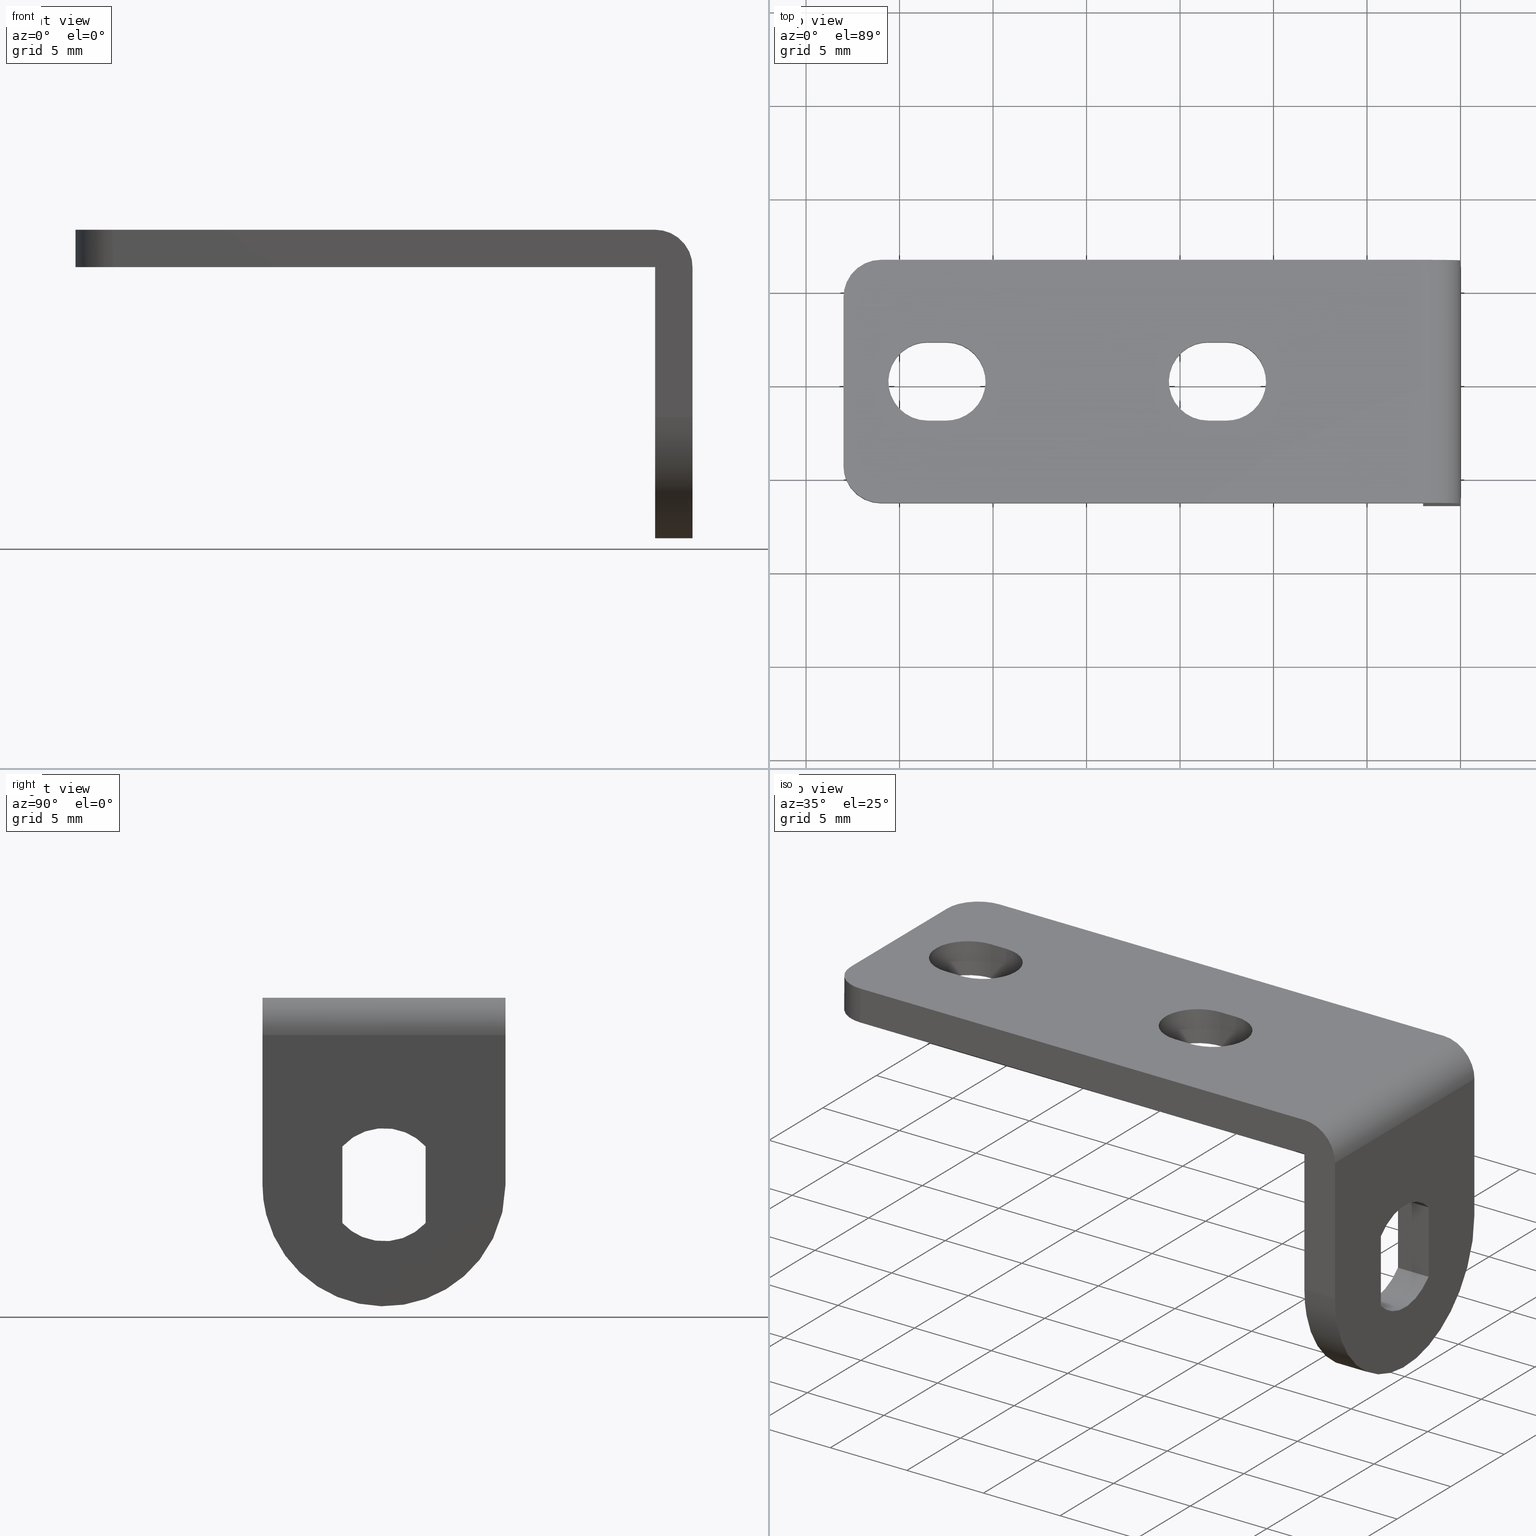
[diagram: canonical four-view strip — front | top / right | iso, engineering-drawing reading convention]
A machine part, canonical four-view strip (front | top / right | iso — engineering-drawing reading convention). The complete STEP part file that produces these views, byte-faithful:
ISO-10303-21;
HEADER;
/****************************************************************
 * Generated by software with PDE/Lib inside                    *
 * PDElib Version v5.1, created Sun 05/01/2005                  *
 * International Technegroup Inc. (www.iti-oh.com)              *
 ****************************************************************/
FILE_DESCRIPTION((''),'2;1');
FILE_NAME('','2009-10-15T11:15:21',(''),(''),'','CADfix','');
FILE_SCHEMA(('AUTOMOTIVE_DESIGN { 1 0 10303 214 1 1 1 1 }'));
ENDSEC;
DATA;
#5=CARTESIAN_POINT('',(-33.0,4.949549982556253,10.099899996123609));
#6=CARTESIAN_POINT('',(-33.0,-4.949550223955065,10.099899996123609));
#7=CARTESIAN_POINT('',(-33.0,4.949549982556253,7.900099950232209));
#8=CARTESIAN_POINT('',(-33.0,-4.949550223955065,7.900099950232209));
#9=B_SPLINE_SURFACE_WITH_KNOTS('',1,1,((#5,#7),(#6,#8)),.UNSPECIFIED.,.F.,.F.,.U.,(2,2),(2,2),(0.0,9.899100206511317),(0.0,2.199800045891402),.UNSPECIFIED.);
#10=CARTESIAN_POINT('',(-33.0,-4.500000000000000,8.0));
#11=VERTEX_POINT('',#10);
#12=CARTESIAN_POINT('',(-33.0,4.500000000000000,8.0));
#13=VERTEX_POINT('',#12);
#14=CARTESIAN_POINT('',(-33.0,-4.500000000000000,8.0));
#15=CARTESIAN_POINT('',(-33.0,4.500000000000000,8.0));
#16=QUASI_UNIFORM_CURVE('',1,(#14,#15),.UNSPECIFIED.,.F.,.U.);
#17=EDGE_CURVE('',#11,#13,#16,.T.);
#18=ORIENTED_EDGE('',*,*,#17,.F.);
#19=CARTESIAN_POINT('',(-33.0,-4.500000000000000,10.0));
#20=VERTEX_POINT('',#19);
#21=CARTESIAN_POINT('',(-33.0,-4.500000000000000,8.0));
#22=CARTESIAN_POINT('',(-33.0,-4.500000000000000,10.0));
#23=QUASI_UNIFORM_CURVE('',1,(#21,#22),.UNSPECIFIED.,.F.,.U.);
#24=EDGE_CURVE('',#11,#20,#23,.T.);
#25=ORIENTED_EDGE('',*,*,#24,.T.);
#26=CARTESIAN_POINT('',(-33.0,4.500000000000000,10.0));
#27=VERTEX_POINT('',#26);
#28=CARTESIAN_POINT('',(-33.0,-4.500000000000000,10.0));
#29=CARTESIAN_POINT('',(-33.0,4.500000000000000,10.0));
#30=QUASI_UNIFORM_CURVE('',1,(#28,#29),.UNSPECIFIED.,.F.,.U.);
#31=EDGE_CURVE('',#20,#27,#30,.T.);
#32=ORIENTED_EDGE('',*,*,#31,.T.);
#33=CARTESIAN_POINT('',(-33.0,4.500000000000000,10.0));
#34=CARTESIAN_POINT('',(-33.0,4.500000000000000,8.0));
#35=QUASI_UNIFORM_CURVE('',1,(#33,#34),.UNSPECIFIED.,.F.,.U.);
#36=EDGE_CURVE('',#27,#13,#35,.T.);
#37=ORIENTED_EDGE('',*,*,#36,.T.);
#38=EDGE_LOOP('',(#18,#25,#32,#37));
#39=FACE_OUTER_BOUND('',#38,.T.);
#40=ADVANCED_FACE('',(#39),#9,.F.);
#41=CARTESIAN_POINT('',(-2.087238774730669,6.825000000000002,9.998096443163716));
#42=CARTESIAN_POINT('',(-2.087238774730669,-6.833125000000001,9.998096443163719));
#43=CARTESIAN_POINT('',(0.152120528918077,6.825000000000000,10.095868981871966));
#44=CARTESIAN_POINT('',(0.152120528918077,-6.833125000000001,10.095868981871970));
#45=CARTESIAN_POINT('',(-0.004914173536164,6.824999999999999,7.859883815912952));
#46=CARTESIAN_POINT('',(-0.004914173536164,-6.833125000000003,7.859883815912955));
#54=(BOUNDED_SURFACE()B_SPLINE_SURFACE(1,2,((#41,#43,#45),(#42,#44,#46)),.UNSPECIFIED.,.F.,.F.,.U.)B_SPLINE_SURFACE_WITH_KNOTS((2,2),(3,3),(0.0,13.658125000000000),(0.0,3.583485079683971),.UNSPECIFIED.)GEOMETRIC_REPRESENTATION_ITEM()RATIONAL_B_SPLINE_SURFACE(((1.0,0.664513898535122,0.996233561259061),(1.0,0.664513898535122,0.996233561259061)))REPRESENTATION_ITEM('')SURFACE());
#55=CARTESIAN_POINT('',(0.0,-6.500000000000000,8.0));
#56=VERTEX_POINT('',#55);
#57=CARTESIAN_POINT('',(-2.0,-6.500000000000000,10.0));
#58=VERTEX_POINT('',#57);
#59=CARTESIAN_POINT('',(0.0,-6.500000000000000,8.0));
#60=CARTESIAN_POINT('',(0.0,-6.500000000000001,10.000000000000002));
#61=CARTESIAN_POINT('',(-2.0,-6.500000000000000,10.0));
#69=(BOUNDED_CURVE()B_SPLINE_CURVE(2,(#59,#60,#61),.UNSPECIFIED.,.F.,.U.)CURVE()GEOMETRIC_REPRESENTATION_ITEM()QUASI_UNIFORM_CURVE()RATIONAL_B_SPLINE_CURVE((1.0,0.707106781186548,1.0))REPRESENTATION_ITEM(''));
#70=EDGE_CURVE('',#56,#58,#69,.T.);
#71=ORIENTED_EDGE('',*,*,#70,.F.);
#72=CARTESIAN_POINT('',(0.0,6.500000000000000,8.0));
#73=VERTEX_POINT('',#72);
#74=CARTESIAN_POINT('',(0.0,6.500000000000000,8.0));
#75=CARTESIAN_POINT('',(0.0,-6.500000000000000,8.0));
#76=QUASI_UNIFORM_CURVE('',1,(#74,#75),.UNSPECIFIED.,.F.,.U.);
#77=EDGE_CURVE('',#73,#56,#76,.T.);
#78=ORIENTED_EDGE('',*,*,#77,.F.);
#79=CARTESIAN_POINT('',(-2.0,6.500000000000000,10.0));
#80=VERTEX_POINT('',#79);
#81=CARTESIAN_POINT('',(-2.0,6.500000000000000,10.0));
#82=CARTESIAN_POINT('',(0.0,6.500000000000001,10.000000000000002));
#83=CARTESIAN_POINT('',(0.0,6.500000000000000,8.0));
#91=(BOUNDED_CURVE()B_SPLINE_CURVE(2,(#81,#82,#83),.UNSPECIFIED.,.F.,.U.)CURVE()GEOMETRIC_REPRESENTATION_ITEM()QUASI_UNIFORM_CURVE()RATIONAL_B_SPLINE_CURVE((1.0,0.707106781186548,1.0))REPRESENTATION_ITEM(''));
#92=EDGE_CURVE('',#80,#73,#91,.T.);
#93=ORIENTED_EDGE('',*,*,#92,.F.);
#94=CARTESIAN_POINT('',(-2.0,-6.500000000000000,10.0));
#95=CARTESIAN_POINT('',(-2.0,6.500000000000000,10.0));
#96=QUASI_UNIFORM_CURVE('',1,(#94,#95),.UNSPECIFIED.,.F.,.U.);
#97=EDGE_CURVE('',#58,#80,#96,.T.);
#98=ORIENTED_EDGE('',*,*,#97,.F.);
#99=EDGE_LOOP('',(#71,#78,#93,#98));
#100=FACE_OUTER_BOUND('',#99,.T.);
#101=ADVANCED_FACE('',(#100),#54,.T.);
#102=CARTESIAN_POINT('',(-30.947646103384251,6.499314649951113,10.050000000000001));
#103=CARTESIAN_POINT('',(-30.947646103384251,6.499314649951113,7.948750000000000));
#104=CARTESIAN_POINT('',(-33.129515177188232,6.556448902391985,10.050000000000002));
#105=CARTESIAN_POINT('',(-33.129515177188232,6.556448902391985,7.948750000000000));
#106=CARTESIAN_POINT('',(-32.996269596843732,4.377902920930293,10.050000000000001));
#107=CARTESIAN_POINT('',(-32.996269596843732,4.377902920930293,7.948750000000000));
#115=(BOUNDED_SURFACE()B_SPLINE_SURFACE(1,2,((#102,#104,#106),(#103,#105,#107)),.UNSPECIFIED.,.F.,.F.,.U.)B_SPLINE_SURFACE_WITH_KNOTS((2,2),(3,3),(0.0,2.101250000000003),(0.0,3.520084247134655),.UNSPECIFIED.)GEOMETRIC_REPRESENTATION_ITEM()RATIONAL_B_SPLINE_SURFACE(((1.0,0.675590207615660,1.0),(1.0,0.675590207615660,1.0)))REPRESENTATION_ITEM('')SURFACE());
#116=CARTESIAN_POINT('',(-31.0,6.500000000000000,10.0));
#117=VERTEX_POINT('',#116);
#118=CARTESIAN_POINT('',(-31.0,6.500000000000000,10.0));
#119=CARTESIAN_POINT('',(-33.0,6.500000000000001,10.000000000000002));
#120=CARTESIAN_POINT('',(-33.0,4.500000000000000,10.0));
#128=(BOUNDED_CURVE()B_SPLINE_CURVE(2,(#118,#119,#120),.UNSPECIFIED.,.F.,.U.)CURVE()GEOMETRIC_REPRESENTATION_ITEM()QUASI_UNIFORM_CURVE()RATIONAL_B_SPLINE_CURVE((1.0,0.707106781186548,1.0))REPRESENTATION_ITEM(''));
#129=EDGE_CURVE('',#117,#27,#128,.T.);
#130=ORIENTED_EDGE('',*,*,#129,.F.);
#131=CARTESIAN_POINT('',(-31.0,6.500000000000000,8.0));
#132=VERTEX_POINT('',#131);
#133=CARTESIAN_POINT('',(-31.0,6.500000000000000,8.0));
#134=CARTESIAN_POINT('',(-31.0,6.500000000000000,10.0));
#135=QUASI_UNIFORM_CURVE('',1,(#133,#134),.UNSPECIFIED.,.F.,.U.);
#136=EDGE_CURVE('',#132,#117,#135,.T.);
#137=ORIENTED_EDGE('',*,*,#136,.F.);
#138=CARTESIAN_POINT('',(-33.0,4.500000000000000,8.0));
#139=CARTESIAN_POINT('',(-33.0,6.500000000000001,8.0));
#140=CARTESIAN_POINT('',(-31.0,6.500000000000000,8.0));
#148=(BOUNDED_CURVE()B_SPLINE_CURVE(2,(#138,#139,#140),.UNSPECIFIED.,.F.,.U.)CURVE()GEOMETRIC_REPRESENTATION_ITEM()QUASI_UNIFORM_CURVE()RATIONAL_B_SPLINE_CURVE((1.0,0.707106781186548,1.0))REPRESENTATION_ITEM(''));
#149=EDGE_CURVE('',#13,#132,#148,.T.);
#150=ORIENTED_EDGE('',*,*,#149,.F.);
#151=ORIENTED_EDGE('',*,*,#36,.F.);
#152=EDGE_LOOP('',(#130,#137,#150,#151));
#153=FACE_OUTER_BOUND('',#152,.T.);
#154=ADVANCED_FACE('',(#153),#115,.T.);
#155=CARTESIAN_POINT('',(-30.947646103384251,-6.499314649951113,7.950000000000000));
#156=CARTESIAN_POINT('',(-30.947646103384251,-6.499314649951113,10.051250000000000));
#157=CARTESIAN_POINT('',(-33.129515177188232,-6.556448902391985,7.950000000000000));
#158=CARTESIAN_POINT('',(-33.129515177188232,-6.556448902391985,10.051250000000001));
#159=CARTESIAN_POINT('',(-32.996269596843732,-4.377902920930293,7.950000000000000));
#160=CARTESIAN_POINT('',(-32.996269596843732,-4.377902920930293,10.051250000000000));
#168=(BOUNDED_SURFACE()B_SPLINE_SURFACE(1,2,((#155,#157,#159),(#156,#158,#160)),.UNSPECIFIED.,.F.,.F.,.U.)B_SPLINE_SURFACE_WITH_KNOTS((2,2),(3,3),(0.0,2.101250000000002),(0.0,3.520084247134655),.UNSPECIFIED.)GEOMETRIC_REPRESENTATION_ITEM()RATIONAL_B_SPLINE_SURFACE(((1.0,0.675590207615660,1.0),(1.0,0.675590207615660,1.0)))REPRESENTATION_ITEM('')SURFACE());
#169=CARTESIAN_POINT('',(-31.0,-6.500000000000000,8.0));
#170=VERTEX_POINT('',#169);
#171=CARTESIAN_POINT('',(-31.0,-6.500000000000000,8.0));
#172=CARTESIAN_POINT('',(-33.0,-6.500000000000001,8.0));
#173=CARTESIAN_POINT('',(-33.0,-4.500000000000000,8.0));
#181=(BOUNDED_CURVE()B_SPLINE_CURVE(2,(#171,#172,#173),.UNSPECIFIED.,.F.,.U.)CURVE()GEOMETRIC_REPRESENTATION_ITEM()QUASI_UNIFORM_CURVE()RATIONAL_B_SPLINE_CURVE((1.0,0.707106781186548,1.0))REPRESENTATION_ITEM(''));
#182=EDGE_CURVE('',#170,#11,#181,.T.);
#183=ORIENTED_EDGE('',*,*,#182,.F.);
#184=CARTESIAN_POINT('',(-31.0,-6.500000000000000,10.0));
#185=VERTEX_POINT('',#184);
#186=CARTESIAN_POINT('',(-31.0,-6.500000000000000,10.0));
#187=CARTESIAN_POINT('',(-31.0,-6.500000000000000,8.0));
#188=QUASI_UNIFORM_CURVE('',1,(#186,#187),.UNSPECIFIED.,.F.,.U.);
#189=EDGE_CURVE('',#185,#170,#188,.T.);
#190=ORIENTED_EDGE('',*,*,#189,.F.);
#191=CARTESIAN_POINT('',(-33.0,-4.500000000000000,10.0));
#192=CARTESIAN_POINT('',(-33.0,-6.500000000000001,10.000000000000002));
#193=CARTESIAN_POINT('',(-31.0,-6.500000000000000,10.0));
#201=(BOUNDED_CURVE()B_SPLINE_CURVE(2,(#191,#192,#193),.UNSPECIFIED.,.F.,.U.)CURVE()GEOMETRIC_REPRESENTATION_ITEM()QUASI_UNIFORM_CURVE()RATIONAL_B_SPLINE_CURVE((1.0,0.707106781186548,1.0))REPRESENTATION_ITEM(''));
#202=EDGE_CURVE('',#20,#185,#201,.T.);
#203=ORIENTED_EDGE('',*,*,#202,.F.);
#204=ORIENTED_EDGE('',*,*,#24,.F.);
#205=EDGE_LOOP('',(#183,#190,#203,#204));
#206=FACE_OUTER_BOUND('',#205,.T.);
#207=ADVANCED_FACE('',(#206),#168,.T.);
#208=CARTESIAN_POINT('',(-2.099899996123611,-2.225000000000000,2.254124221551445));
#209=CARTESIAN_POINT('',(-2.099899996123611,-2.225000000000000,-2.254124331489389));
#210=CARTESIAN_POINT('',(0.099900049767792,-2.225000000000000,2.254124221551445));
#211=CARTESIAN_POINT('',(0.099900049767792,-2.225000000000000,-2.254124331489389));
#212=B_SPLINE_SURFACE_WITH_KNOTS('',1,1,((#208,#210),(#209,#211)),.UNSPECIFIED.,.F.,.F.,.U.,(2,2),(2,2),(0.0,4.508248553040835),(0.0,2.199800045891403),.UNSPECIFIED.);
#213=CARTESIAN_POINT('',(-2.0,-2.225000000000000,-2.049390153191900));
#214=VERTEX_POINT('',#213);
#215=CARTESIAN_POINT('',(-2.0,-2.225000000000000,2.049390153191810));
#216=VERTEX_POINT('',#215);
#217=CARTESIAN_POINT('',(-2.0,-2.225000000000000,-2.049390153191900));
#218=CARTESIAN_POINT('',(-2.0,-2.225000000000000,2.049390153191810));
#219=QUASI_UNIFORM_CURVE('',1,(#217,#218),.UNSPECIFIED.,.F.,.U.);
#220=EDGE_CURVE('',#214,#216,#219,.T.);
#221=ORIENTED_EDGE('',*,*,#220,.T.);
#222=CARTESIAN_POINT('',(0.0,-2.225000000000000,2.049390153191810));
#223=VERTEX_POINT('',#222);
#224=CARTESIAN_POINT('',(0.0,-2.225000000000000,2.049390153191810));
#225=CARTESIAN_POINT('',(-2.0,-2.225000000000000,2.049390153191810));
#226=QUASI_UNIFORM_CURVE('',1,(#224,#225),.UNSPECIFIED.,.F.,.U.);
#227=EDGE_CURVE('',#223,#216,#226,.T.);
#228=ORIENTED_EDGE('',*,*,#227,.F.);
#229=CARTESIAN_POINT('',(0.0,-2.225000000000000,-2.049390153191900));
#230=VERTEX_POINT('',#229);
#231=CARTESIAN_POINT('',(0.0,-2.225000000000000,-2.049390153191900));
#232=CARTESIAN_POINT('',(0.0,-2.225000000000000,2.049390153191810));
#233=QUASI_UNIFORM_CURVE('',1,(#231,#232),.UNSPECIFIED.,.F.,.U.);
#234=EDGE_CURVE('',#230,#223,#233,.T.);
#235=ORIENTED_EDGE('',*,*,#234,.F.);
#236=CARTESIAN_POINT('',(0.0,-2.225000000000000,-2.049390153191900));
#237=CARTESIAN_POINT('',(-2.0,-2.225000000000000,-2.049390153191900));
#238=QUASI_UNIFORM_CURVE('',1,(#236,#237),.UNSPECIFIED.,.F.,.U.);
#239=EDGE_CURVE('',#230,#214,#238,.T.);
#240=ORIENTED_EDGE('',*,*,#239,.T.);
#241=EDGE_LOOP('',(#221,#228,#235,#240));
#242=FACE_OUTER_BOUND('',#241,.T.);
#243=ADVANCED_FACE('',(#242),#212,.F.);
#244=CARTESIAN_POINT('',(0.050000000000000,-2.288093528145802,-1.978699827274792));
#245=CARTESIAN_POINT('',(-2.051250000000000,-2.288093528145802,-1.978699827274792));
#246=CARTESIAN_POINT('',(0.050000000000000,0.098907118232147,-4.738936956409964));
#247=CARTESIAN_POINT('',(-2.051250000000000,0.098907118232147,-4.738936956409964));
#248=CARTESIAN_POINT('',(0.050000000000000,2.368660548059229,-1.881507961202328));
#249=CARTESIAN_POINT('',(-2.051250000000000,2.368660548059229,-1.881507961202328));
#257=(BOUNDED_SURFACE()B_SPLINE_SURFACE(1,2,((#244,#246,#248),(#245,#247,#249)),.UNSPECIFIED.,.F.,.F.,.U.)B_SPLINE_SURFACE_WITH_KNOTS((2,2),(3,3),(0.0,2.101250000000000),(0.0,5.686478798136462),.UNSPECIFIED.)GEOMETRIC_REPRESENTATION_ITEM()RATIONAL_B_SPLINE_SURFACE(((1.0,0.637368668954222,0.997428254381767),(1.0,0.637368668954222,0.997428254381767)))REPRESENTATION_ITEM('')SURFACE());
#258=CARTESIAN_POINT('',(-2.0,2.225000000000000,-2.049390153191895));
#259=VERTEX_POINT('',#258);
#260=CARTESIAN_POINT('',(-2.0,2.225000000000000,-2.049390153191895));
#261=CARTESIAN_POINT('',(-2.0,2.101505619495727,-2.183479612575628));
#262=CARTESIAN_POINT('',(-2.0,1.801131388566470,-2.455601944057032));
#263=CARTESIAN_POINT('',(-2.0,1.305557498763463,-2.749922535725177));
#264=CARTESIAN_POINT('',(-1.999999999999999,0.825473383847988,-2.920894479872005));
#265=CARTESIAN_POINT('',(-2.000000000000007,0.390864704031906,-3.009061683374335));
#266=CARTESIAN_POINT('',(-1.999999999999987,-0.117420446036299,-3.041971172032383));
#267=CARTESIAN_POINT('',(-2.000000000000007,-0.676414282255761,-2.969390914024591));
#268=CARTESIAN_POINT('',(-2.000000000000003,-1.195729694786962,-2.791864609872553));
#269=CARTESIAN_POINT('',(-1.999999999999996,-1.715635769934116,-2.518412250746568));
#270=CARTESIAN_POINT('',(-2.000000000000001,-2.039810292822370,-2.250592039802251));
#271=CARTESIAN_POINT('',(-2.0,-2.225000000000000,-2.049390153191900));
#272=B_SPLINE_CURVE_WITH_KNOTS('',3,(#260,#261,#262,#263,#264,#265,#266,#267,#268,#269,#270,#271),.UNSPECIFIED.,.F.,.U.,(4,1,1,1,1,1,1,1,1,4),(8.069619E-009,0.546886146901112,1.210964638110033,1.718794840483118,2.070368489043807,2.539117460991305,3.242255531745626,3.750085249541511,4.179782768870926,5.000113255541421),.UNSPECIFIED.);
#273=EDGE_CURVE('',#259,#214,#272,.T.);
#274=ORIENTED_EDGE('',*,*,#273,.T.);
#275=ORIENTED_EDGE('',*,*,#239,.F.);
#276=CARTESIAN_POINT('',(0.0,2.225000000000000,-2.049390153191895));
#277=VERTEX_POINT('',#276);
#278=CARTESIAN_POINT('',(0.0,2.225000000000000,-2.049390153191895));
#279=CARTESIAN_POINT('',(0.0,2.066242211879372,-2.221812543929323));
#280=CARTESIAN_POINT('',(0.0,1.698452012505978,-2.538034670305128));
#281=CARTESIAN_POINT('',(0.0,1.078955045574241,-2.853789182332903));
#282=CARTESIAN_POINT('',(0.0,0.482099903002205,-3.003180467352935));
#283=CARTESIAN_POINT('',(0.0,-0.117421838410509,-3.041961972614474));
#284=CARTESIAN_POINT('',(0.0,-0.676413852054989,-2.969393750708280));
#285=CARTESIAN_POINT('',(0.0,-1.195729768616037,-2.791864122946298));
#286=CARTESIAN_POINT('',(0.0,-1.715635770027413,-2.518412250542273));
#287=CARTESIAN_POINT('',(0.0,-2.039810292791877,-2.250592039869015));
#288=CARTESIAN_POINT('',(0.0,-2.225000000000000,-2.049390153191900));
#289=B_SPLINE_CURVE_WITH_KNOTS('',3,(#278,#279,#280,#281,#282,#283,#284,#285,#286,#287,#288),.UNSPECIFIED.,.F.,.U.,(4,1,1,1,1,1,1,1,4),(8.069619E-009,0.703134735984326,1.445345635704363,2.070368489043807,2.539117460991305,3.242255531745626,3.750085249541511,4.179782768870926,5.000113255541421),.UNSPECIFIED.);
#290=EDGE_CURVE('',#277,#230,#289,.T.);
#291=ORIENTED_EDGE('',*,*,#290,.F.);
#292=CARTESIAN_POINT('',(0.0,2.225000000000000,-2.049390153191895));
#293=CARTESIAN_POINT('',(-2.0,2.225000000000000,-2.049390153191895));
#294=QUASI_UNIFORM_CURVE('',1,(#292,#293),.UNSPECIFIED.,.F.,.U.);
#295=EDGE_CURVE('',#277,#259,#294,.T.);
#296=ORIENTED_EDGE('',*,*,#295,.T.);
#297=EDGE_LOOP('',(#274,#275,#291,#296));
#298=FACE_OUTER_BOUND('',#297,.T.);
#299=ADVANCED_FACE('',(#298),#257,.F.);
#300=CARTESIAN_POINT('',(-2.099899996123612,2.225000000000000,-2.254124221551530));
#301=CARTESIAN_POINT('',(-2.099899996123612,2.225000000000000,2.254124331489300));
#302=CARTESIAN_POINT('',(0.099900049767792,2.225000000000000,-2.254124221551530));
#303=CARTESIAN_POINT('',(0.099900049767792,2.225000000000000,2.254124331489300));
#304=B_SPLINE_SURFACE_WITH_KNOTS('',1,1,((#300,#302),(#301,#303)),.UNSPECIFIED.,.F.,.F.,.U.,(2,2),(2,2),(0.0,4.508248553040829),(0.0,2.199800045891404),.UNSPECIFIED.);
#305=CARTESIAN_POINT('',(-2.0,2.225000000000000,2.049390153191810));
#306=VERTEX_POINT('',#305);
#307=CARTESIAN_POINT('',(-2.0,2.225000000000000,2.049390153191810));
#308=CARTESIAN_POINT('',(-2.0,2.225000000000000,-2.049390153191895));
#309=QUASI_UNIFORM_CURVE('',1,(#307,#308),.UNSPECIFIED.,.F.,.U.);
#310=EDGE_CURVE('',#306,#259,#309,.T.);
#311=ORIENTED_EDGE('',*,*,#310,.T.);
#312=ORIENTED_EDGE('',*,*,#295,.F.);
#313=CARTESIAN_POINT('',(0.0,2.225000000000000,2.049390153191810));
#314=VERTEX_POINT('',#313);
#315=CARTESIAN_POINT('',(0.0,2.225000000000000,2.049390153191810));
#316=CARTESIAN_POINT('',(0.0,2.225000000000000,-2.049390153191895));
#317=QUASI_UNIFORM_CURVE('',1,(#315,#316),.UNSPECIFIED.,.F.,.U.);
#318=EDGE_CURVE('',#314,#277,#317,.T.);
#319=ORIENTED_EDGE('',*,*,#318,.F.);
#320=CARTESIAN_POINT('',(0.0,2.225000000000000,2.049390153191810));
#321=CARTESIAN_POINT('',(-2.0,2.225000000000000,2.049390153191810));
#322=QUASI_UNIFORM_CURVE('',1,(#320,#321),.UNSPECIFIED.,.F.,.U.);
#323=EDGE_CURVE('',#314,#306,#322,.T.);
#324=ORIENTED_EDGE('',*,*,#323,.T.);
#325=EDGE_LOOP('',(#311,#312,#319,#324));
#326=FACE_OUTER_BOUND('',#325,.T.);
#327=ADVANCED_FACE('',(#326),#304,.F.);
#328=CARTESIAN_POINT('',(0.050000000000000,2.288093528145761,1.978699827274839));
#329=CARTESIAN_POINT('',(-2.051250000000000,2.288093528145761,1.978699827274839));
#330=CARTESIAN_POINT('',(0.050000000000000,-0.098907118232245,4.738936956409962));
#331=CARTESIAN_POINT('',(-2.051250000000000,-0.098907118232245,4.738936956409962));
#332=CARTESIAN_POINT('',(0.050000000000000,-2.368660548059268,1.881507961202279));
#333=CARTESIAN_POINT('',(-2.051250000000000,-2.368660548059268,1.881507961202279));
#341=(BOUNDED_SURFACE()B_SPLINE_SURFACE(1,2,((#328,#330,#332),(#329,#331,#333)),.UNSPECIFIED.,.F.,.F.,.U.)B_SPLINE_SURFACE_WITH_KNOTS((2,2),(3,3),(0.0,2.101250000000000),(0.0,5.686478798136462),.UNSPECIFIED.)GEOMETRIC_REPRESENTATION_ITEM()RATIONAL_B_SPLINE_SURFACE(((1.0,0.637368668954222,0.997428254381767),(1.0,0.637368668954222,0.997428254381767)))REPRESENTATION_ITEM('')SURFACE());
#342=CARTESIAN_POINT('',(-2.0,-2.225000000000000,2.049390153191810));
#343=CARTESIAN_POINT('',(-1.999999999999998,-2.031006195260670,2.260190321691498));
#344=CARTESIAN_POINT('',(-2.000000000000007,-1.725189268082799,2.509500036538843));
#345=CARTESIAN_POINT('',(-1.999999999999994,-1.242172448946228,2.767541170521441));
#346=CARTESIAN_POINT('',(-2.000000000000012,-0.863487723868469,2.910773057280674));
#347=CARTESIAN_POINT('',(-1.999999999999989,-0.391415096193735,3.012908597625646));
#348=CARTESIAN_POINT('',(-1.999999999999996,0.091684946193217,3.037890837009070));
#349=CARTESIAN_POINT('',(-2.000000000000005,0.649490684755462,2.972781117727226));
#350=CARTESIAN_POINT('',(-1.999999999999998,1.149529323285999,2.816209647081225));
#351=CARTESIAN_POINT('',(-2.000000000000001,1.715630193629047,2.518396352325647));
#352=CARTESIAN_POINT('',(-1.999999999999999,2.039812081739565,2.250597189945147));
#353=CARTESIAN_POINT('',(-2.0,2.225000000000000,2.049390153191810));
#354=B_SPLINE_CURVE_WITH_KNOTS('',3,(#342,#343,#344,#345,#346,#347,#348,#349,#350,#351,#352,#353),.UNSPECIFIED.,.F.,.U.,(4,1,1,1,1,1,1,1,1,4),(8.069359E-009,0.859390450907211,1.171900766265275,1.640667301761298,2.070368489043887,2.617239591922656,3.086007354720771,3.750085249541642,4.179782768871053,5.000113255541534),.UNSPECIFIED.);
#355=EDGE_CURVE('',#216,#306,#354,.T.);
#356=ORIENTED_EDGE('',*,*,#355,.T.);
#357=ORIENTED_EDGE('',*,*,#323,.F.);
#358=CARTESIAN_POINT('',(0.0,-2.225000000000000,2.049390153191810));
#359=CARTESIAN_POINT('',(0.0,-2.031003567918119,2.260181486694275));
#360=CARTESIAN_POINT('',(0.0,-1.653834101651891,2.567691548098811));
#361=CARTESIAN_POINT('',(0.0,-1.087167711786510,2.838267559281084));
#362=CARTESIAN_POINT('',(0.0,-0.647764746313776,2.963475253012602));
#363=CARTESIAN_POINT('',(0.0,-0.260783447094791,3.021370158692325));
#364=CARTESIAN_POINT('',(0.0,0.143574439275667,3.031818423133955));
#365=CARTESIAN_POINT('',(0.0,0.649490992202454,2.972787639983153));
#366=CARTESIAN_POINT('',(0.0,1.149529203839073,2.816207637508748));
#367=CARTESIAN_POINT('',(0.0,1.715630253416153,2.518397358575006));
#368=CARTESIAN_POINT('',(0.0,2.039812062219553,2.250596860866705));
#369=CARTESIAN_POINT('',(0.0,2.225000000000000,2.049390153191810));
#370=B_SPLINE_CURVE_WITH_KNOTS('',3,(#358,#359,#360,#361,#362,#363,#364,#365,#366,#367,#368,#369),.UNSPECIFIED.,.F.,.U.,(4,1,1,1,1,1,1,1,1,4),(8.069359E-009,0.859390450907211,1.445345635704413,1.875044543677592,2.226624659416981,2.617239591922656,3.086007354720771,3.750085249541642,4.179782768871053,5.000113255541534),.UNSPECIFIED.);
#371=EDGE_CURVE('',#223,#314,#370,.T.);
#372=ORIENTED_EDGE('',*,*,#371,.F.);
#373=ORIENTED_EDGE('',*,*,#227,.T.);
#374=EDGE_LOOP('',(#356,#357,#372,#373));
#375=FACE_OUTER_BOUND('',#374,.T.);
#376=ADVANCED_FACE('',(#375),#341,.F.);
#377=CARTESIAN_POINT('',(-28.549956998061798,2.100000000000000,7.900100003876166));
#378=CARTESIAN_POINT('',(-28.549956998061798,2.100000000000000,10.099900049767800));
#379=CARTESIAN_POINT('',(-27.450056975116208,2.100000000000000,7.900100003876166));
#380=CARTESIAN_POINT('',(-27.450056975116208,2.100000000000000,10.099900049767800));
#381=B_SPLINE_SURFACE_WITH_KNOTS('',1,1,((#377,#379),(#378,#380)),.UNSPECIFIED.,.F.,.F.,.U.,(2,2),(2,2),(0.0,2.199800045891636),(0.041708334948495,0.958291687403247),.UNSPECIFIED.);
#382=CARTESIAN_POINT('',(-28.500007000000000,2.100000000000000,8.0));
#383=VERTEX_POINT('',#382);
#384=CARTESIAN_POINT('',(-27.500007000000100,2.100000000000000,7.999999999999789));
#385=VERTEX_POINT('',#384);
#386=CARTESIAN_POINT('',(-28.500007000000000,2.100000000000000,8.0));
#387=CARTESIAN_POINT('',(-27.500007000000100,2.100000000000000,7.999999999999789));
#388=QUASI_UNIFORM_CURVE('',1,(#386,#387),.UNSPECIFIED.,.F.,.U.);
#389=EDGE_CURVE('',#383,#385,#388,.T.);
#390=ORIENTED_EDGE('',*,*,#389,.T.);
#391=CARTESIAN_POINT('',(-27.500007000000100,2.100000000000000,10.0));
#392=VERTEX_POINT('',#391);
#393=CARTESIAN_POINT('',(-27.500007000000100,2.100000000000000,10.0));
#394=CARTESIAN_POINT('',(-27.500007000000100,2.100000000000000,7.999999999999789));
#395=QUASI_UNIFORM_CURVE('',1,(#393,#394),.UNSPECIFIED.,.F.,.U.);
#396=EDGE_CURVE('',#392,#385,#395,.T.);
#397=ORIENTED_EDGE('',*,*,#396,.F.);
#398=CARTESIAN_POINT('',(-28.500006999999950,2.100000000000000,10.0));
#399=VERTEX_POINT('',#398);
#400=CARTESIAN_POINT('',(-28.500006999999950,2.100000000000000,10.0));
#401=CARTESIAN_POINT('',(-27.500007000000100,2.100000000000000,10.0));
#402=QUASI_UNIFORM_CURVE('',1,(#400,#401),.UNSPECIFIED.,.F.,.U.);
#403=EDGE_CURVE('',#399,#392,#402,.T.);
#404=ORIENTED_EDGE('',*,*,#403,.F.);
#405=CARTESIAN_POINT('',(-28.500006999999950,2.100000000000000,10.0));
#406=CARTESIAN_POINT('',(-28.500007000000000,2.100000000000000,8.0));
#407=QUASI_UNIFORM_CURVE('',1,(#405,#406),.UNSPECIFIED.,.F.,.U.);
#408=EDGE_CURVE('',#399,#383,#407,.T.);
#409=ORIENTED_EDGE('',*,*,#408,.T.);
#410=EDGE_LOOP('',(#390,#397,#404,#409));
#411=FACE_OUTER_BOUND('',#410,.T.);
#412=ADVANCED_FACE('',(#411),#381,.F.);
#413=CARTESIAN_POINT('',(-28.445035408553409,2.099280382448669,10.050000000000010));
#414=CARTESIAN_POINT('',(-28.445035408553409,2.099280382448669,7.948749999999782));
#415=CARTESIAN_POINT('',(-30.657215352970038,2.157208352970098,10.050000000000008));
#416=CARTESIAN_POINT('',(-30.657215352970038,2.157208352970098,7.948749999999782));
#417=CARTESIAN_POINT('',(-30.599287382448619,-0.054971591446527,10.050000000000010));
#418=CARTESIAN_POINT('',(-30.599287382448619,-0.054971591446527,7.948749999999782));
#419=CARTESIAN_POINT('',(-30.541359411927200,-2.267151535863157,10.050000000000008));
#420=CARTESIAN_POINT('',(-30.541359411927200,-2.267151535863157,7.948749999999782));
#421=CARTESIAN_POINT('',(-28.335242898971480,-2.093526400839572,10.050000000000010));
#422=CARTESIAN_POINT('',(-28.335242898971480,-2.093526400839572,7.948749999999782));
#430=(BOUNDED_SURFACE()B_SPLINE_SURFACE(1,2,((#413,#415,#417,#419,#421),(#414,#416,#418,#420,#422)),.UNSPECIFIED.,.F.,.F.,.U.)B_SPLINE_SURFACE_WITH_KNOTS((2,2),(3,2,3),(0.0,2.101250000000226),(0.0,3.608924810121425,7.217849620242850),.UNSPECIFIED.)GEOMETRIC_REPRESENTATION_ITEM()RATIONAL_B_SPLINE_SURFACE(((1.0,0.688354575693754,1.0,0.688354575693754,1.0),(1.0,0.688354575693754,1.0,0.688354575693754,1.0)))REPRESENTATION_ITEM('')SURFACE());
#431=CARTESIAN_POINT('',(-28.500006999999950,-2.100000000000000,7.999999999999789));
#432=VERTEX_POINT('',#431);
#433=CARTESIAN_POINT('',(-28.500006999999950,-2.100000000000000,7.999999999999789));
#434=CARTESIAN_POINT('',(-28.620263742091499,-2.100007918931733,7.999999999999775));
#435=CARTESIAN_POINT('',(-28.869376111454251,-2.078550591768240,7.999999999999811));
#436=CARTESIAN_POINT('',(-29.194173548334771,-1.990811402263315,7.999999999999775));
#437=CARTESIAN_POINT('',(-29.516775707918491,-1.847813542183672,7.999999999999781));
#438=CARTESIAN_POINT('',(-29.813439365354171,-1.654829935764011,7.999999999999814));
#439=CARTESIAN_POINT('',(-30.061876568357491,-1.415347120879163,7.999999999999734));
#440=CARTESIAN_POINT('',(-30.266687381253160,-1.149568120483187,7.999999999999900));
#441=CARTESIAN_POINT('',(-30.439145319053669,-0.840761659948083,7.999999999999632));
#442=CARTESIAN_POINT('',(-30.548155769346049,-0.503832279548689,7.999999999999732));
#443=CARTESIAN_POINT('',(-30.603357829824780,-0.146735760189044,8.000000000000032));
#444=CARTESIAN_POINT('',(-30.603381858297340,0.224419567413383,7.999999999999405));
#445=CARTESIAN_POINT('',(-30.504952264742631,0.689474839425530,7.999999999999988));
#446=CARTESIAN_POINT('',(-30.309889572380939,1.095457704482885,7.999999999999718));
#447=CARTESIAN_POINT('',(-30.057354942779689,1.423095964479487,7.999999999999806));
#448=CARTESIAN_POINT('',(-29.829945288035638,1.634347165467730,7.999999999999789));
#449=CARTESIAN_POINT('',(-29.568563719730669,1.816049503349913,7.999999999999783));
#450=CARTESIAN_POINT('',(-29.314417387359342,1.943969091109835,7.999999999999764));
#451=CARTESIAN_POINT('',(-28.946672070550001,2.065469475817759,7.999999999999887));
#452=CARTESIAN_POINT('',(-28.680408599153420,2.100051014326433,7.999999999999612));
#453=CARTESIAN_POINT('',(-28.500007000000000,2.100000000000000,8.0));
#454=B_SPLINE_CURVE_WITH_KNOTS('',3,(#433,#434,#435,#436,#437,#438,#439,#440,#441,#442,#443,#444,#445,#446,#447,#448,#449,#450,#451,#452,#453),.UNSPECIFIED.,.F.,.U.,(4,1,1,1,1,1,1,1,1,1,1,1,1,1,1,1,1,1,4),(0.000000080647867,0.360772037221383,0.747344724951675,1.005066560935696,1.417403730976727,1.803976484105833,2.035913619555326,2.422482571318741,2.860594379299326,3.092544508728885,3.504839456063156,3.968723134806426,4.509929714411546,4.844953937340516,5.205755089322520,5.437691127443609,5.798498560973187,6.056197956520133,6.597385968107757),.UNSPECIFIED.);
#455=EDGE_CURVE('',#432,#383,#454,.T.);
#456=ORIENTED_EDGE('',*,*,#455,.T.);
#457=ORIENTED_EDGE('',*,*,#408,.F.);
#458=CARTESIAN_POINT('',(-28.500006999999950,-2.100000000000000,10.0));
#459=VERTEX_POINT('',#458);
#460=CARTESIAN_POINT('',(-28.500006999999950,-2.100000000000000,10.0));
#461=CARTESIAN_POINT('',(-28.654627607421631,-2.100029020816533,9.999999999999993));
#462=CARTESIAN_POINT('',(-28.938090349906560,-2.068546868151748,9.999999999999996));
#463=CARTESIAN_POINT('',(-29.315649357867400,-1.946386878683386,10.0));
#464=CARTESIAN_POINT('',(-29.658781324349761,-1.765683052329597,9.999999999999950));
#465=CARTESIAN_POINT('',(-29.943388309856090,-1.540752977480805,10.000000000000060));
#466=CARTESIAN_POINT('',(-30.217274528149840,-1.231015800761199,10.000000000000030));
#467=CARTESIAN_POINT('',(-30.428531735355438,-0.873643969560297,9.999999999999895));
#468=CARTESIAN_POINT('',(-30.561446935140491,-0.462740080137985,9.999999999999886));
#469=CARTESIAN_POINT('',(-30.611045426117389,-0.060560229656254,10.000000000000270));
#470=CARTESIAN_POINT('',(-30.584098112299859,0.378838418758298,9.999999999999803));
#471=CARTESIAN_POINT('',(-30.460920588025921,0.794022961254657,10.000000000000069));
#472=CARTESIAN_POINT('',(-30.255441806568189,1.172777481763986,9.999999999999996));
#473=CARTESIAN_POINT('',(-30.050484029935880,1.428864583237080,9.999999999999996));
#474=CARTESIAN_POINT('',(-29.796913484080932,1.661533009999969,10.000000000000011));
#475=CARTESIAN_POINT('',(-29.525467199527760,1.845336899844080,9.999999999999975));
#476=CARTESIAN_POINT('',(-29.225927298976700,1.978098281060579,9.999999999999890));
#477=CARTESIAN_POINT('',(-28.886546680766021,2.074262420103647,10.000000000000410));
#478=CARTESIAN_POINT('',(-28.654629461814501,2.100028709502922,10.000000000000460));
#479=CARTESIAN_POINT('',(-28.500006999999950,2.100000000000000,10.0));
#480=B_SPLINE_CURVE_WITH_KNOTS('',3,(#460,#461,#462,#463,#464,#465,#466,#467,#468,#469,#470,#471,#472,#473,#474,#475,#476,#477,#478,#479),.UNSPECIFIED.,.F.,.U.,(4,1,1,1,1,1,1,1,1,1,1,1,1,1,1,1,1,4),(0.000000080623095,0.463858199842256,0.850430284344272,1.185468036233541,1.623575941378833,1.932830377539990,2.422482571301938,2.860594379284405,3.221402572653566,3.633695651824231,4.174894844913542,4.509929714404073,4.922268308825482,5.154208826915668,5.540775349131473,5.901584346821821,6.133525672553089,6.597385968107822),.UNSPECIFIED.);
#481=EDGE_CURVE('',#459,#399,#480,.T.);
#482=ORIENTED_EDGE('',*,*,#481,.F.);
#483=CARTESIAN_POINT('',(-28.500006999999950,-2.100000000000000,10.0));
#484=CARTESIAN_POINT('',(-28.500006999999950,-2.100000000000000,7.999999999999789));
#485=QUASI_UNIFORM_CURVE('',1,(#483,#484),.UNSPECIFIED.,.F.,.U.);
#486=EDGE_CURVE('',#459,#432,#485,.T.);
#487=ORIENTED_EDGE('',*,*,#486,.T.);
#488=EDGE_LOOP('',(#456,#457,#482,#487));
#489=FACE_OUTER_BOUND('',#488,.T.);
#490=ADVANCED_FACE('',(#489),#430,.F.);
#491=CARTESIAN_POINT('',(-28.549956998061749,-2.100000000000000,10.099899996123620));
#492=CARTESIAN_POINT('',(-28.549956998061749,-2.100000000000000,7.900099950231985));
#493=CARTESIAN_POINT('',(-27.450056975116208,-2.100000000000000,10.099899996123620));
#494=CARTESIAN_POINT('',(-27.450056975116208,-2.100000000000000,7.900099950231985));
#495=B_SPLINE_SURFACE_WITH_KNOTS('',1,1,((#491,#493),(#492,#494)),.UNSPECIFIED.,.F.,.F.,.U.,(2,2),(2,2),(0.0,2.199800045891637),(0.041708334948495,0.958291687403247),.UNSPECIFIED.);
#496=CARTESIAN_POINT('',(-27.500007000000100,-2.100000000000000,7.999999999999789));
#497=VERTEX_POINT('',#496);
#498=CARTESIAN_POINT('',(-27.500007000000100,-2.100000000000000,7.999999999999789));
#499=CARTESIAN_POINT('',(-28.500006999999950,-2.100000000000000,7.999999999999789));
#500=QUASI_UNIFORM_CURVE('',1,(#498,#499),.UNSPECIFIED.,.F.,.U.);
#501=EDGE_CURVE('',#497,#432,#500,.T.);
#502=ORIENTED_EDGE('',*,*,#501,.T.);
#503=ORIENTED_EDGE('',*,*,#486,.F.);
#504=CARTESIAN_POINT('',(-27.500007000000100,-2.100000000000000,10.0));
#505=VERTEX_POINT('',#504);
#506=CARTESIAN_POINT('',(-27.500007000000100,-2.100000000000000,10.0));
#507=CARTESIAN_POINT('',(-28.500006999999950,-2.100000000000000,10.0));
#508=QUASI_UNIFORM_CURVE('',1,(#506,#507),.UNSPECIFIED.,.F.,.U.);
#509=EDGE_CURVE('',#505,#459,#508,.T.);
#510=ORIENTED_EDGE('',*,*,#509,.F.);
#511=CARTESIAN_POINT('',(-27.500007000000100,-2.100000000000000,10.0));
#512=CARTESIAN_POINT('',(-27.500007000000100,-2.100000000000000,7.999999999999789));
#513=QUASI_UNIFORM_CURVE('',1,(#511,#512),.UNSPECIFIED.,.F.,.U.);
#514=EDGE_CURVE('',#505,#497,#513,.T.);
#515=ORIENTED_EDGE('',*,*,#514,.T.);
#516=EDGE_LOOP('',(#502,#503,#510,#515));
#517=FACE_OUTER_BOUND('',#516,.T.);
#518=ADVANCED_FACE('',(#517),#495,.F.);
#519=CARTESIAN_POINT('',(-27.554978591446641,-2.099280382448669,10.050000000000010));
#520=CARTESIAN_POINT('',(-27.554978591446641,-2.099280382448669,7.948749999999782));
#521=CARTESIAN_POINT('',(-25.342798647030016,-2.157208352970098,10.050000000000008));
#522=CARTESIAN_POINT('',(-25.342798647030016,-2.157208352970098,7.948749999999782));
#523=CARTESIAN_POINT('',(-25.400726617551431,0.054971591446527,10.050000000000010));
#524=CARTESIAN_POINT('',(-25.400726617551431,0.054971591446527,7.948749999999782));
#525=CARTESIAN_POINT('',(-25.458654588072850,2.267151535863157,10.050000000000008));
#526=CARTESIAN_POINT('',(-25.458654588072850,2.267151535863157,7.948749999999782));
#527=CARTESIAN_POINT('',(-27.664771101028570,2.093526400839572,10.050000000000010));
#528=CARTESIAN_POINT('',(-27.664771101028570,2.093526400839572,7.948749999999782));
#536=(BOUNDED_SURFACE()B_SPLINE_SURFACE(1,2,((#519,#521,#523,#525,#527),(#520,#522,#524,#526,#528)),.UNSPECIFIED.,.F.,.F.,.U.)B_SPLINE_SURFACE_WITH_KNOTS((2,2),(3,2,3),(0.0,2.101250000000224),(0.0,3.608924810121429,7.217849620242857),.UNSPECIFIED.)GEOMETRIC_REPRESENTATION_ITEM()RATIONAL_B_SPLINE_SURFACE(((1.0,0.688354575693754,1.0,0.688354575693754,1.0),(1.0,0.688354575693754,1.0,0.688354575693754,1.0)))REPRESENTATION_ITEM('')SURFACE());
#537=CARTESIAN_POINT('',(-27.500007000000100,2.100000000000000,7.999999999999789));
#538=CARTESIAN_POINT('',(-27.379750375556458,2.100007888880857,7.999999999999796));
#539=CARTESIAN_POINT('',(-27.130637489960439,2.078551204305608,7.999999999999793));
#540=CARTESIAN_POINT('',(-26.805840340859419,1.990811670010537,7.999999999999758));
#541=CARTESIAN_POINT('',(-26.506846137412239,1.858270800291473,7.999999999999817));
#542=CARTESIAN_POINT('',(-26.236414805364120,1.689342819908660,7.999999999999766));
#543=CARTESIAN_POINT('',(-25.939267686892020,1.426634468712291,7.999999999999787));
#544=CARTESIAN_POINT('',(-25.700321671142088,1.108540941173976,7.999999999999798));
#545=CARTESIAN_POINT('',(-25.532393044567179,0.758982761050859,7.999999999999758));
#546=CARTESIAN_POINT('',(-25.424534705993530,0.395474581574848,7.999999999999822));
#547=CARTESIAN_POINT('',(-25.388108950728679,0.025639336930912,7.999999999999749));
#548=CARTESIAN_POINT('',(-25.424317501511432,-0.394879926285062,7.999999999999798));
#549=CARTESIAN_POINT('',(-25.523336891850469,-0.744365155290510,7.999999999999856));
#550=CARTESIAN_POINT('',(-25.695436134474459,-1.091506652832708,7.999999999999536));
#551=CARTESIAN_POINT('',(-25.895851574630161,-1.372409489053395,8.000000000000043));
#552=CARTESIAN_POINT('',(-26.142699970579891,-1.613259768836648,7.999999999999585));
#553=CARTESIAN_POINT('',(-26.444075265791948,-1.828312418270370,7.999999999999941));
#554=CARTESIAN_POINT('',(-26.780034698634658,-1.987212119322559,7.999999999999595));
#555=CARTESIAN_POINT('',(-27.156409327816160,-2.081458259118464,7.999999999999955));
#556=CARTESIAN_POINT('',(-27.388338989379271,-2.100006227675578,7.999999999999746));
#557=CARTESIAN_POINT('',(-27.500007000000100,-2.100000000000000,7.999999999999789));
#558=B_SPLINE_CURVE_WITH_KNOTS('',3,(#537,#538,#539,#540,#541,#542,#543,#544,#545,#546,#547,#548,#549,#550,#551,#552,#553,#554,#555,#556,#557),.UNSPECIFIED.,.F.,.U.,(4,1,1,1,1,1,1,1,1,1,1,1,1,1,1,1,1,1,4),(0.000000080640646,0.360772037215060,0.747344724946455,1.005066560931060,1.340089552226999,1.700890399712123,2.190548579617546,2.525567778365256,2.860594379296924,3.324451149752294,3.633695651833609,4.123363211903781,4.406847592661085,4.793412552387195,5.154208826919097,5.437691127442550,5.901584346822991,6.262380913769971,6.597385968107834),.UNSPECIFIED.);
#559=EDGE_CURVE('',#385,#497,#558,.T.);
#560=ORIENTED_EDGE('',*,*,#559,.T.);
#561=ORIENTED_EDGE('',*,*,#514,.F.);
#562=CARTESIAN_POINT('',(-27.500007000000100,2.100000000000000,10.0));
#563=CARTESIAN_POINT('',(-27.379750307046550,2.100007942497881,10.0));
#564=CARTESIAN_POINT('',(-27.130637825768709,2.078550967532066,10.0));
#565=CARTESIAN_POINT('',(-26.789184706953261,1.986313829794552,9.999999999999966));
#566=CARTESIAN_POINT('',(-26.491594496456059,1.850000097218324,10.000000000000030));
#567=CARTESIAN_POINT('',(-26.223500491209489,1.677916698127365,10.0));
#568=CARTESIAN_POINT('',(-25.939265615694850,1.426637380616385,9.999999999999989));
#569=CARTESIAN_POINT('',(-25.700323021684390,1.108539859244826,10.000000000000020));
#570=CARTESIAN_POINT('',(-25.532389318804569,0.758983258458693,9.999999999999973));
#571=CARTESIAN_POINT('',(-25.446612976566051,0.469818387229636,9.999999999999947));
#572=CARTESIAN_POINT('',(-25.396654725245199,0.146736246827345,10.000000000000091));
#573=CARTESIAN_POINT('',(-25.396628447752011,-0.224421480111136,10.000000000000030));
#574=CARTESIAN_POINT('',(-25.480768761470539,-0.621815597151349,9.999999999999783));
#575=CARTESIAN_POINT('',(-25.648101121016460,-1.018895651510152,10.000000000000080));
#576=CARTESIAN_POINT('',(-25.871144279066971,-1.348337617384563,9.999999999999973));
#577=CARTESIAN_POINT('',(-26.142704043721530,-1.613257266114935,9.999999999999854));
#578=CARTESIAN_POINT('',(-26.444075548082061,-1.828312225472474,10.000000000000210));
#579=CARTESIAN_POINT('',(-26.780034616784839,-1.987212175221855,9.999999999999742));
#580=CARTESIAN_POINT('',(-27.156409339413852,-2.081458251197587,10.000000000000220));
#581=CARTESIAN_POINT('',(-27.388338989379289,-2.100006227675647,9.999999999999936));
#582=CARTESIAN_POINT('',(-27.500007000000100,-2.100000000000000,10.0));
#583=B_SPLINE_CURVE_WITH_KNOTS('',3,(#562,#563,#564,#565,#566,#567,#568,#569,#570,#571,#572,#573,#574,#575,#576,#577,#578,#579,#580,#581,#582),.UNSPECIFIED.,.F.,.U.,(4,1,1,1,1,1,1,1,1,1,1,1,1,1,1,1,1,1,4),(0.000000080640646,0.360772037215060,0.747344724946455,1.056603402707790,1.340089552226999,1.700890399712123,2.190548579617546,2.525567778365256,2.860594379296924,3.092544508726609,3.504839456061119,3.968723134804607,4.303759913398274,4.793412552387195,5.154208826919097,5.437691127442550,5.901584346822991,6.262380913769971,6.597385968107834),.UNSPECIFIED.);
#584=EDGE_CURVE('',#392,#505,#583,.T.);
#585=ORIENTED_EDGE('',*,*,#584,.F.);
#586=ORIENTED_EDGE('',*,*,#396,.T.);
#587=EDGE_LOOP('',(#560,#561,#585,#586));
#588=FACE_OUTER_BOUND('',#587,.T.);
#589=ADVANCED_FACE('',(#588),#536,.F.);
#590=CARTESIAN_POINT('',(-13.549956998061811,2.100000000000000,7.900100003876166));
#591=CARTESIAN_POINT('',(-13.549956998061811,2.100000000000000,10.099900049767800));
#592=CARTESIAN_POINT('',(-12.450056975116080,2.100000000000000,7.900100003876166));
#593=CARTESIAN_POINT('',(-12.450056975116080,2.100000000000000,10.099900049767800));
#594=B_SPLINE_SURFACE_WITH_KNOTS('',1,1,((#590,#592),(#591,#593)),.UNSPECIFIED.,.F.,.F.,.U.,(2,2),(2,2),(0.0,2.199800045891636),(0.041708334948495,0.958291687403247),.UNSPECIFIED.);
#595=CARTESIAN_POINT('',(-13.500006999999981,2.100000000000000,8.0));
#596=VERTEX_POINT('',#595);
#597=CARTESIAN_POINT('',(-12.500007000000000,2.100000000000000,7.999999999999789));
#598=VERTEX_POINT('',#597);
#599=CARTESIAN_POINT('',(-13.500006999999981,2.100000000000000,8.0));
#600=CARTESIAN_POINT('',(-12.500007000000000,2.100000000000000,7.999999999999789));
#601=QUASI_UNIFORM_CURVE('',1,(#599,#600),.UNSPECIFIED.,.F.,.U.);
#602=EDGE_CURVE('',#596,#598,#601,.T.);
#603=ORIENTED_EDGE('',*,*,#602,.T.);
#604=CARTESIAN_POINT('',(-12.500006999999981,2.100000000000000,10.0));
#605=VERTEX_POINT('',#604);
#606=CARTESIAN_POINT('',(-12.500006999999981,2.100000000000000,10.0));
#607=CARTESIAN_POINT('',(-12.500007000000000,2.100000000000000,7.999999999999789));
#608=QUASI_UNIFORM_CURVE('',1,(#606,#607),.UNSPECIFIED.,.F.,.U.);
#609=EDGE_CURVE('',#605,#598,#608,.T.);
#610=ORIENTED_EDGE('',*,*,#609,.F.);
#611=CARTESIAN_POINT('',(-13.500007000000000,2.100000000000000,10.0));
#612=VERTEX_POINT('',#611);
#613=CARTESIAN_POINT('',(-13.500007000000000,2.100000000000000,10.0));
#614=CARTESIAN_POINT('',(-12.500006999999981,2.100000000000000,10.0));
#615=QUASI_UNIFORM_CURVE('',1,(#613,#614),.UNSPECIFIED.,.F.,.U.);
#616=EDGE_CURVE('',#612,#605,#615,.T.);
#617=ORIENTED_EDGE('',*,*,#616,.F.);
#618=CARTESIAN_POINT('',(-13.500007000000000,2.100000000000000,10.0));
#619=CARTESIAN_POINT('',(-13.500006999999981,2.100000000000000,8.0));
#620=QUASI_UNIFORM_CURVE('',1,(#618,#619),.UNSPECIFIED.,.F.,.U.);
#621=EDGE_CURVE('',#612,#596,#620,.T.);
#622=ORIENTED_EDGE('',*,*,#621,.T.);
#623=EDGE_LOOP('',(#603,#610,#617,#622));
#624=FACE_OUTER_BOUND('',#623,.T.);
#625=ADVANCED_FACE('',(#624),#594,.F.);
#626=CARTESIAN_POINT('',(-13.445035408553460,2.099280382448669,10.050000000000010));
#627=CARTESIAN_POINT('',(-13.445035408553460,2.099280382448669,7.948749999999782));
#628=CARTESIAN_POINT('',(-15.657215352970093,2.157208352970096,10.050000000000008));
#629=CARTESIAN_POINT('',(-15.657215352970093,2.157208352970096,7.948749999999782));
#630=CARTESIAN_POINT('',(-15.599287382448670,-0.054971591446529,10.050000000000010));
#631=CARTESIAN_POINT('',(-15.599287382448670,-0.054971591446529,7.948749999999782));
#632=CARTESIAN_POINT('',(-15.541359411927246,-2.267151535863152,10.050000000000008));
#633=CARTESIAN_POINT('',(-15.541359411927246,-2.267151535863152,7.948749999999782));
#634=CARTESIAN_POINT('',(-13.335242898971529,-2.093526400839565,10.050000000000010));
#635=CARTESIAN_POINT('',(-13.335242898971529,-2.093526400839565,7.948749999999782));
#643=(BOUNDED_SURFACE()B_SPLINE_SURFACE(1,2,((#626,#628,#630,#632,#634),(#627,#629,#631,#633,#635)),.UNSPECIFIED.,.F.,.F.,.U.)B_SPLINE_SURFACE_WITH_KNOTS((2,2),(3,2,3),(0.0,2.101250000000226),(0.0,3.608924810121421,7.217849620242841),.UNSPECIFIED.)GEOMETRIC_REPRESENTATION_ITEM()RATIONAL_B_SPLINE_SURFACE(((1.0,0.688354575693754,1.0,0.688354575693754,1.0),(1.0,0.688354575693754,1.0,0.688354575693754,1.0)))REPRESENTATION_ITEM('')SURFACE());
#644=CARTESIAN_POINT('',(-13.500007000000000,-2.100000000000000,7.999999999999789));
#645=VERTEX_POINT('',#644);
#646=CARTESIAN_POINT('',(-13.500007000000000,-2.100000000000000,7.999999999999789));
#647=CARTESIAN_POINT('',(-13.646039634358379,-2.100022805771919,7.999999999999815));
#648=CARTESIAN_POINT('',(-13.903738606120459,-2.073005345932298,7.999999999999752));
#649=CARTESIAN_POINT('',(-14.292048743104299,-1.957823036940574,7.999999999999784));
#650=CARTESIAN_POINT('',(-14.630457292051780,-1.784879344575691,7.999999999999869));
#651=CARTESIAN_POINT('',(-14.909127947576120,-1.567373115020243,7.999999999999724));
#652=CARTESIAN_POINT('',(-15.134645226752580,-1.330508517353600,7.999999999999872));
#653=CARTESIAN_POINT('',(-15.308397723602130,-1.083788247525932,7.999999999999707));
#654=CARTESIAN_POINT('',(-15.484335930812550,-0.728948819464107,7.999999999999893));
#655=CARTESIAN_POINT('',(-15.590501179254680,-0.335946812986328,7.999999999999747));
#656=CARTESIAN_POINT('',(-15.609728862659770,0.112245667304152,7.999999999999794));
#657=CARTESIAN_POINT('',(-15.555260588715379,0.479392649945114,7.999999999999796));
#658=CARTESIAN_POINT('',(-15.420199462083710,0.888352681667046,7.999999999999790));
#659=CARTESIAN_POINT('',(-15.197605637656560,1.270323909169436,7.999999999999790));
#660=CARTESIAN_POINT('',(-14.885867682812499,1.593663304485657,7.999999999999790));
#661=CARTESIAN_POINT('',(-14.598239702060679,1.798872462709379,7.999999999999834));
#662=CARTESIAN_POINT('',(-14.283910041818940,1.959537271376855,7.999999999999500));
#663=CARTESIAN_POINT('',(-13.920926632353090,2.072081729504553,8.000000000000542));
#664=CARTESIAN_POINT('',(-13.637450627196070,2.100013201747897,7.999999999999234));
#665=CARTESIAN_POINT('',(-13.500006999999981,2.100000000000000,8.0));
#666=B_SPLINE_CURVE_WITH_KNOTS('',3,(#646,#647,#648,#649,#650,#651,#652,#653,#654,#655,#656,#657,#658,#659,#660,#661,#662,#663,#664,#665),.UNSPECIFIED.,.F.,.U.,(4,1,1,1,1,1,1,1,1,1,1,1,1,1,1,1,1,4),(0.000000082416273,0.438095971261449,0.773130827162061,1.211241074817751,1.572041315020988,1.829746943894129,2.190551635923618,2.474013922413830,3.015206400834967,3.401779041634921,3.814114020181115,4.123372118202219,4.690315874199701,5.128433598969579,5.463459614809487,5.746946299641612,6.185053441995901,6.597385968105096),.UNSPECIFIED.);
#667=EDGE_CURVE('',#645,#596,#666,.T.);
#668=ORIENTED_EDGE('',*,*,#667,.T.);
#669=ORIENTED_EDGE('',*,*,#621,.F.);
#670=CARTESIAN_POINT('',(-13.500007000000000,-2.100000000000000,10.0));
#671=VERTEX_POINT('',#670);
#672=CARTESIAN_POINT('',(-13.500007000000000,-2.100000000000000,10.0));
#673=CARTESIAN_POINT('',(-13.637451562665101,-2.100016803283368,10.000000000000011));
#674=CARTESIAN_POINT('',(-13.920922201259300,-2.072074884993291,9.999999999999998));
#675=CARTESIAN_POINT('',(-14.300406723454440,-1.954425619638527,9.999999999999996));
#676=CARTESIAN_POINT('',(-14.681665348502531,-1.753643900027021,10.000000000000030));
#677=CARTESIAN_POINT('',(-14.989437684087569,-1.501088456339610,9.999999999999952));
#678=CARTESIAN_POINT('',(-15.228148701547420,-1.206467980786982,10.000000000000060));
#679=CARTESIAN_POINT('',(-15.381487142047650,-0.947049432547162,9.999999999999924));
#680=CARTESIAN_POINT('',(-15.505206774895260,-0.653485568572398,10.000000000000030));
#681=CARTESIAN_POINT('',(-15.591092631598359,-0.301498593884615,9.999999999999941));
#682=CARTESIAN_POINT('',(-15.611859062130851,0.120941290525480,10.000000000000050));
#683=CARTESIAN_POINT('',(-15.543212098573290,0.547587662544812,9.999999999999886));
#684=CARTESIAN_POINT('',(-15.387875980353140,0.950259642555457,10.000000000000220));
#685=CARTESIAN_POINT('',(-15.138523364283101,1.344094189295564,9.999999999999291));
#686=CARTESIAN_POINT('',(-14.822116816581410,1.652867679313750,10.000000000000460));
#687=CARTESIAN_POINT('',(-14.493160710414360,1.858262145407780,9.999999999999895));
#688=CARTESIAN_POINT('',(-14.202043686875840,1.987319088268077,9.999999999999846));
#689=CARTESIAN_POINT('',(-13.877970064770830,2.077002645244425,10.000000000000380));
#690=CARTESIAN_POINT('',(-13.628856948247240,2.100012822689684,9.999999999999902));
#691=CARTESIAN_POINT('',(-13.500007000000000,2.100000000000000,10.0));
#692=B_SPLINE_CURVE_WITH_KNOTS('',3,(#672,#673,#674,#675,#676,#677,#678,#679,#680,#681,#682,#683,#684,#685,#686,#687,#688,#689,#690,#691),.UNSPECIFIED.,.F.,.U.,(4,1,1,1,1,1,1,1,1,1,1,1,1,1,1,1,1,4),(0.000000080648022,0.412333834519854,0.850430284366817,1.185468036254844,1.700890399715891,2.035913619555415,2.319398531722619,2.602890836265362,2.989448652149423,3.401758216657851,3.865637727056650,4.277981434250715,4.690328892159094,5.257293949704035,5.592327367436325,5.850031037810568,6.210835966412354,6.597385968107798),.UNSPECIFIED.);
#693=EDGE_CURVE('',#671,#612,#692,.T.);
#694=ORIENTED_EDGE('',*,*,#693,.F.);
#695=CARTESIAN_POINT('',(-13.500007000000000,-2.100000000000000,10.0));
#696=CARTESIAN_POINT('',(-13.500007000000000,-2.100000000000000,7.999999999999789));
#697=QUASI_UNIFORM_CURVE('',1,(#695,#696),.UNSPECIFIED.,.F.,.U.);
#698=EDGE_CURVE('',#671,#645,#697,.T.);
#699=ORIENTED_EDGE('',*,*,#698,.T.);
#700=EDGE_LOOP('',(#668,#669,#694,#699));
#701=FACE_OUTER_BOUND('',#700,.T.);
#702=ADVANCED_FACE('',(#701),#643,.F.);
#703=CARTESIAN_POINT('',(-13.549956998061811,-2.100000000000000,10.099899996123620));
#704=CARTESIAN_POINT('',(-13.549956998061811,-2.100000000000000,7.900099950231985));
#705=CARTESIAN_POINT('',(-12.450056975116100,-2.100000000000000,10.099899996123620));
#706=CARTESIAN_POINT('',(-12.450056975116100,-2.100000000000000,7.900099950231985));
#707=B_SPLINE_SURFACE_WITH_KNOTS('',1,1,((#703,#705),(#704,#706)),.UNSPECIFIED.,.F.,.F.,.U.,(2,2),(2,2),(0.0,2.199800045891637),(0.041708334948495,0.958291687403247),.UNSPECIFIED.);
#708=CARTESIAN_POINT('',(-12.500007000000000,-2.100000000000000,7.999999999999789));
#709=VERTEX_POINT('',#708);
#710=CARTESIAN_POINT('',(-12.500007000000000,-2.100000000000000,7.999999999999789));
#711=CARTESIAN_POINT('',(-13.500007000000000,-2.100000000000000,7.999999999999789));
#712=QUASI_UNIFORM_CURVE('',1,(#710,#711),.UNSPECIFIED.,.F.,.U.);
#713=EDGE_CURVE('',#709,#645,#712,.T.);
#714=ORIENTED_EDGE('',*,*,#713,.T.);
#715=ORIENTED_EDGE('',*,*,#698,.F.);
#716=CARTESIAN_POINT('',(-12.500007000000000,-2.100000000000000,10.0));
#717=VERTEX_POINT('',#716);
#718=CARTESIAN_POINT('',(-12.500007000000000,-2.100000000000000,10.0));
#719=CARTESIAN_POINT('',(-13.500007000000000,-2.100000000000000,10.0));
#720=QUASI_UNIFORM_CURVE('',1,(#718,#719),.UNSPECIFIED.,.F.,.U.);
#721=EDGE_CURVE('',#717,#671,#720,.T.);
#722=ORIENTED_EDGE('',*,*,#721,.F.);
#723=CARTESIAN_POINT('',(-12.500007000000000,-2.100000000000000,10.0));
#724=CARTESIAN_POINT('',(-12.500007000000000,-2.100000000000000,7.999999999999789));
#725=QUASI_UNIFORM_CURVE('',1,(#723,#724),.UNSPECIFIED.,.F.,.U.);
#726=EDGE_CURVE('',#717,#709,#725,.T.);
#727=ORIENTED_EDGE('',*,*,#726,.T.);
#728=EDGE_LOOP('',(#714,#715,#722,#727));
#729=FACE_OUTER_BOUND('',#728,.T.);
#730=ADVANCED_FACE('',(#729),#707,.F.);
#731=CARTESIAN_POINT('',(-12.554978591446559,-2.099280382448669,10.050000000000010));
#732=CARTESIAN_POINT('',(-12.554978591446559,-2.099280382448669,7.948749999999784));
#733=CARTESIAN_POINT('',(-10.342798647029932,-2.157208352970116,10.050000000000008));
#734=CARTESIAN_POINT('',(-10.342798647029932,-2.157208352970116,7.948749999999783));
#735=CARTESIAN_POINT('',(-10.400726617551330,0.054971591446510,10.050000000000010));
#736=CARTESIAN_POINT('',(-10.400726617551330,0.054971591446510,7.948749999999784));
#737=CARTESIAN_POINT('',(-10.458654588072728,2.267151535863136,10.050000000000008));
#738=CARTESIAN_POINT('',(-10.458654588072728,2.267151535863136,7.948749999999783));
#739=CARTESIAN_POINT('',(-12.664771101028450,2.093526400839571,10.050000000000010));
#740=CARTESIAN_POINT('',(-12.664771101028450,2.093526400839571,7.948749999999784));
#748=(BOUNDED_SURFACE()B_SPLINE_SURFACE(1,2,((#731,#733,#735,#737,#739),(#732,#734,#736,#738,#740)),.UNSPECIFIED.,.F.,.F.,.U.)B_SPLINE_SURFACE_WITH_KNOTS((2,2),(3,2,3),(0.0,2.101250000000222),(0.0,3.608924810121423,7.217849620242847),.UNSPECIFIED.)GEOMETRIC_REPRESENTATION_ITEM()RATIONAL_B_SPLINE_SURFACE(((1.0,0.688354575693754,1.0,0.688354575693754,1.0),(1.0,0.688354575693754,1.0,0.688354575693754,1.0)))REPRESENTATION_ITEM('')SURFACE());
#749=CARTESIAN_POINT('',(-12.500007000000000,2.100000000000000,7.999999999999789));
#750=CARTESIAN_POINT('',(-12.276645890995800,2.100120561147452,7.999999999999780));
#751=CARTESIAN_POINT('',(-11.941713349983139,2.046034162637864,7.999999999999818));
#752=CARTESIAN_POINT('',(-11.504943746472859,1.861932252716466,7.999999999999780));
#753=CARTESIAN_POINT('',(-11.186577678927559,1.654826849073269,7.999999999999804));
#754=CARTESIAN_POINT('',(-10.925709926667150,1.403373991584633,7.999999999999765));
#755=CARTESIAN_POINT('',(-10.703337634668570,1.107362792835435,7.999999999999825));
#756=CARTESIAN_POINT('',(-10.542178697495659,0.792040073461178,7.999999999999693));
#757=CARTESIAN_POINT('',(-10.434354487563930,0.428508129798776,7.999999999999838));
#758=CARTESIAN_POINT('',(-10.388960467673851,0.060557866996910,7.999999999999838));
#759=CARTESIAN_POINT('',(-10.409608152712879,-0.275435635210858,7.999999999999767));
#760=CARTESIAN_POINT('',(-10.486607697224670,-0.628476500442922,7.999999999999827));
#761=CARTESIAN_POINT('',(-10.603447347049210,-0.925921895517069,7.999999999999765));
#762=CARTESIAN_POINT('',(-10.804673141172909,-1.257032319238342,7.999999999999803));
#763=CARTESIAN_POINT('',(-11.014889090671350,-1.497725852406575,7.999999999999766));
#764=CARTESIAN_POINT('',(-11.286192143462470,-1.723169526768607,7.999999999999865));
#765=CARTESIAN_POINT('',(-11.566330139055870,-1.893427062710779,7.999999999999583));
#766=CARTESIAN_POINT('',(-11.984636762135461,-2.054790895311852,8.000000000000222));
#767=CARTESIAN_POINT('',(-12.302425050235559,-2.100084841163769,7.999999999999033));
#768=CARTESIAN_POINT('',(-12.500007000000000,-2.100000000000000,7.999999999999789));
#769=B_SPLINE_CURVE_WITH_KNOTS('',3,(#749,#750,#751,#752,#753,#754,#755,#756,#757,#758,#759,#760,#761,#762,#763,#764,#765,#766,#767,#768),.UNSPECIFIED.,.F.,.U.,(4,1,1,1,1,1,1,1,1,1,1,1,1,1,1,1,1,4),(0.000000080644215,0.670031260782975,1.005066560932844,1.417403730973921,1.803976484103102,2.087463021798352,2.525567778365462,2.860594379296988,3.221402572664565,3.633695651833456,3.865637727055189,4.303759913397881,4.587242440313460,5.025354425459065,5.257293949703289,5.643861525672884,6.004670039935157,6.597385968107829),.UNSPECIFIED.);
#770=EDGE_CURVE('',#598,#709,#769,.T.);
#771=ORIENTED_EDGE('',*,*,#770,.T.);
#772=ORIENTED_EDGE('',*,*,#726,.F.);
#773=CARTESIAN_POINT('',(-12.500006999999981,2.100000000000000,10.0));
#774=CARTESIAN_POINT('',(-12.362563973454639,2.100009897221054,9.999999999999993));
#775=CARTESIAN_POINT('',(-12.061901096592701,2.070403707037987,10.000000000000020));
#776=CARTESIAN_POINT('',(-11.650466275001120,1.937280110420580,9.999999999999986));
#777=CARTESIAN_POINT('',(-11.298923035822540,1.735245968060877,10.000000000000020));
#778=CARTESIAN_POINT('',(-11.007299617732510,1.492900669790519,9.999999999999982));
#779=CARTESIAN_POINT('',(-10.723820523025010,1.156087373973677,10.000000000000041));
#780=CARTESIAN_POINT('',(-10.501640094748611,0.714723392805218,9.999999999999933));
#781=CARTESIAN_POINT('',(-10.400326625238639,0.249949302203419,10.000000000000030));
#782=CARTESIAN_POINT('',(-10.395691406338431,-0.129380950072407,9.999999999999993));
#783=CARTESIAN_POINT('',(-10.446541451638691,-0.487394343387985,9.999999999999998));
#784=CARTESIAN_POINT('',(-10.560865413568450,-0.840753635967055,9.999999999999995));
#785=CARTESIAN_POINT('',(-10.771166611136181,-1.217366224389257,10.000000000000011));
#786=CARTESIAN_POINT('',(-11.025203122081949,-1.511865793066081,9.999999999999996));
#787=CARTESIAN_POINT('',(-11.321124381496000,-1.748675257555814,10.000000000000030));
#788=CARTESIAN_POINT('',(-11.643702062752540,-1.931438295958226,9.999999999999874));
#789=CARTESIAN_POINT('',(-12.044741032680649,-2.066648566691385,10.000000000000330));
#790=CARTESIAN_POINT('',(-12.345385981350690,-2.100024739910665,9.999999999999577));
#791=CARTESIAN_POINT('',(-12.500007000000000,-2.100000000000000,10.0));
#792=B_SPLINE_CURVE_WITH_KNOTS('',3,(#773,#774,#775,#776,#777,#778,#779,#780,#781,#782,#783,#784,#785,#786,#787,#788,#789,#790,#791),.UNSPECIFIED.,.F.,.U.,(4,1,1,1,1,1,1,1,1,1,1,1,1,1,1,1,4),(0.000000080641525,0.412333834513567,0.901984815301881,1.288550565366056,1.623575941392908,2.035913619549826,2.602890836260350,3.092544508724333,3.453313097924696,3.736781999677848,4.174894844919093,4.561467450630763,5.025354425458388,5.334608584525101,5.695412943359151,6.133525672553415,6.597385968107806),.UNSPECIFIED.);
#793=EDGE_CURVE('',#605,#717,#792,.T.);
#794=ORIENTED_EDGE('',*,*,#793,.F.);
#795=ORIENTED_EDGE('',*,*,#609,.T.);
#796=EDGE_LOOP('',(#771,#772,#794,#795));
#797=FACE_OUTER_BOUND('',#796,.T.);
#798=ADVANCED_FACE('',(#797),#748,.F.);
#799=CARTESIAN_POINT('',(-2.0,7.149349974803477,8.724274971896184));
#800=CARTESIAN_POINT('',(-2.0,-7.149350323490650,8.724274971896184));
#801=CARTESIAN_POINT('',(-2.0,7.149349974803477,-7.224275360816481));
#802=CARTESIAN_POINT('',(-2.0,-7.149350323490650,-7.224275360816481));
#803=B_SPLINE_SURFACE_WITH_KNOTS('',1,1,((#799,#801),(#800,#802)),.UNSPECIFIED.,.F.,.F.,.U.,(2,2),(2,2),(0.0,14.298700298294129),(0.0,15.948550332712671),.UNSPECIFIED.);
#804=CARTESIAN_POINT('',(-2.0,6.500000000000000,-1.193991E-015));
#805=VERTEX_POINT('',#804);
#806=CARTESIAN_POINT('',(-2.0,-6.500000000000000,1.193991E-015));
#807=VERTEX_POINT('',#806);
#808=CARTESIAN_POINT('',(-2.0,6.500000000000000,-1.193991E-015));
#809=CARTESIAN_POINT('',(-1.999999999999997,6.500025426505443,-0.345656446081939));
#810=CARTESIAN_POINT('',(-2.000000000000002,6.448974651867337,-0.983778392165899));
#811=CARTESIAN_POINT('',(-2.000000000000003,6.251026567345239,-1.840647117348953));
#812=CARTESIAN_POINT('',(-2.000000000000008,5.936241192412015,-2.703762827278696));
#813=CARTESIAN_POINT('',(-1.999999999999978,5.524925572956372,-3.467627936959102));
#814=CARTESIAN_POINT('',(-2.000000000000014,4.969690109730950,-4.216236978139025));
#815=CARTESIAN_POINT('',(-2.000000000000004,4.315125921380862,-4.899589401327991));
#816=CARTESIAN_POINT('',(-1.999999999999970,3.557235209807541,-5.468917830801994));
#817=CARTESIAN_POINT('',(-2.000000000000051,2.702830228493413,-5.932341434402829));
#818=CARTESIAN_POINT('',(-1.999999999999945,1.843445933456443,-6.260829179109481));
#819=CARTESIAN_POINT('',(-2.000000000000039,0.786592613153222,-6.484583147521252));
#820=CARTESIAN_POINT('',(-2.000000000000085,-0.200689680580520,-6.520947790900753));
#821=CARTESIAN_POINT('',(-1.999999999999906,-1.127039246762629,-6.418178689722023));
#822=CARTESIAN_POINT('',(-2.000000000000092,-1.969718634741845,-6.218072168985705));
#823=CARTESIAN_POINT('',(-1.999999999999881,-2.961392022278480,-5.825079316354625));
#824=CARTESIAN_POINT('',(-2.000000000000171,-3.892485264195813,-5.247398064412497));
#825=CARTESIAN_POINT('',(-1.999999999999970,-4.647295867504491,-4.571599508465138));
#826=CARTESIAN_POINT('',(-1.999999999999990,-5.176004431551932,-3.954853493041523));
#827=CARTESIAN_POINT('',(-2.000000000000012,-5.646312273409182,-3.260263654882156));
#828=CARTESIAN_POINT('',(-1.999999999999959,-6.102465573079885,-2.340184538032268));
#829=CARTESIAN_POINT('',(-2.000000000000109,-6.426472580652728,-1.209789316548541));
#830=CARTESIAN_POINT('',(-1.999999999999867,-6.500032757692410,-0.385540029992129));
#831=CARTESIAN_POINT('',(-2.0,-6.500000000000000,1.193991E-015));
#832=B_SPLINE_CURVE_WITH_KNOTS('',3,(#808,#809,#810,#811,#812,#813,#814,#815,#816,#817,#818,#819,#820,#821,#822,#823,#824,#825,#826,#827,#828,#829,#830,#831),.UNSPECIFIED.,.F.,.U.,(4,1,1,1,1,1,1,1,1,1,1,1,1,1,1,1,1,1,1,1,1,4),(0.000000055785154,1.036965685181901,1.914394275590116,2.632313006088687,3.788931591196974,4.506843486594113,5.424167088487160,6.620673878396687,7.338584896999844,8.335682672362676,9.372656980965527,10.569121763500840,11.287035985506140,12.164482380999440,13.161563963835450,14.477728813842839,15.434939765199051,16.192728185973579,16.910640513222710,17.947618174241001,19.263765361580720,20.420384281945129),.UNSPECIFIED.);
#833=EDGE_CURVE('',#805,#807,#832,.T.);
#834=ORIENTED_EDGE('',*,*,#833,.T.);
#835=CARTESIAN_POINT('',(-2.0,-6.500000000000000,8.0));
#836=VERTEX_POINT('',#835);
#837=CARTESIAN_POINT('',(-2.0,-6.500000000000000,1.193991E-015));
#838=CARTESIAN_POINT('',(-2.0,-6.500000000000000,8.0));
#839=QUASI_UNIFORM_CURVE('',1,(#837,#838),.UNSPECIFIED.,.F.,.U.);
#840=EDGE_CURVE('',#807,#836,#839,.T.);
#841=ORIENTED_EDGE('',*,*,#840,.T.);
#842=CARTESIAN_POINT('',(-2.0,6.500000000000000,8.0));
#843=VERTEX_POINT('',#842);
#844=CARTESIAN_POINT('',(-2.0,-6.500000000000000,8.0));
#845=CARTESIAN_POINT('',(-2.0,6.500000000000000,8.0));
#846=QUASI_UNIFORM_CURVE('',1,(#844,#845),.UNSPECIFIED.,.F.,.U.);
#847=EDGE_CURVE('',#836,#843,#846,.T.);
#848=ORIENTED_EDGE('',*,*,#847,.T.);
#849=CARTESIAN_POINT('',(-2.0,6.500000000000000,8.0));
#850=CARTESIAN_POINT('',(-2.0,6.500000000000000,-1.193991E-015));
#851=QUASI_UNIFORM_CURVE('',1,(#849,#850),.UNSPECIFIED.,.F.,.U.);
#852=EDGE_CURVE('',#843,#805,#851,.T.);
#853=ORIENTED_EDGE('',*,*,#852,.T.);
#854=EDGE_LOOP('',(#834,#841,#848,#853));
#855=FACE_OUTER_BOUND('',#854,.T.);
#856=ORIENTED_EDGE('',*,*,#355,.F.);
#857=ORIENTED_EDGE('',*,*,#220,.F.);
#858=ORIENTED_EDGE('',*,*,#273,.F.);
#859=ORIENTED_EDGE('',*,*,#310,.F.);
#860=EDGE_LOOP('',(#856,#857,#858,#859));
#861=FACE_BOUND('',#860,.T.);
#862=ADVANCED_FACE('',(#855,#861),#803,.F.);
#863=CARTESIAN_POINT('',(-34.548449939915990,-7.149349974803478,8.0));
#864=CARTESIAN_POINT('',(-34.548449939915990,7.149350323490650,8.0));
#865=CARTESIAN_POINT('',(-0.451549228599219,-7.149349974803478,8.0));
#866=CARTESIAN_POINT('',(-0.451549228599219,7.149350323490651,8.0));
#867=B_SPLINE_SURFACE_WITH_KNOTS('',1,1,((#863,#865),(#864,#866)),.UNSPECIFIED.,.F.,.F.,.U.,(2,2),(2,2),(0.0,14.298700298294129),(0.0,34.096900711316771),.UNSPECIFIED.);
#868=CARTESIAN_POINT('',(-31.0,-6.500000000000000,8.0));
#869=CARTESIAN_POINT('',(-2.0,-6.500000000000000,8.0));
#870=QUASI_UNIFORM_CURVE('',1,(#868,#869),.UNSPECIFIED.,.F.,.U.);
#871=EDGE_CURVE('',#170,#836,#870,.T.);
#872=ORIENTED_EDGE('',*,*,#871,.F.);
#873=ORIENTED_EDGE('',*,*,#182,.T.);
#874=ORIENTED_EDGE('',*,*,#17,.T.);
#875=ORIENTED_EDGE('',*,*,#149,.T.);
#876=CARTESIAN_POINT('',(-31.0,6.500000000000000,8.0));
#877=CARTESIAN_POINT('',(-2.0,6.500000000000000,8.0));
#878=QUASI_UNIFORM_CURVE('',1,(#876,#877),.UNSPECIFIED.,.F.,.U.);
#879=EDGE_CURVE('',#132,#843,#878,.T.);
#880=ORIENTED_EDGE('',*,*,#879,.T.);
#881=ORIENTED_EDGE('',*,*,#847,.F.);
#882=EDGE_LOOP('',(#872,#873,#874,#875,#880,#881));
#883=FACE_OUTER_BOUND('',#882,.T.);
#884=ORIENTED_EDGE('',*,*,#770,.F.);
#885=ORIENTED_EDGE('',*,*,#602,.F.);
#886=ORIENTED_EDGE('',*,*,#667,.F.);
#887=ORIENTED_EDGE('',*,*,#713,.F.);
#888=EDGE_LOOP('',(#884,#885,#886,#887));
#889=FACE_BOUND('',#888,.T.);
#890=ORIENTED_EDGE('',*,*,#559,.F.);
#891=ORIENTED_EDGE('',*,*,#389,.F.);
#892=ORIENTED_EDGE('',*,*,#455,.F.);
#893=ORIENTED_EDGE('',*,*,#501,.F.);
#894=EDGE_LOOP('',(#890,#891,#892,#893));
#895=FACE_BOUND('',#894,.T.);
#896=ADVANCED_FACE('',(#883,#889,#895),#867,.T.);
#897=CARTESIAN_POINT('',(0.0,7.149349974803477,8.724274971896184));
#898=CARTESIAN_POINT('',(0.0,-7.149350323490650,8.724274971896184));
#899=CARTESIAN_POINT('',(0.0,7.149349974803477,-7.224275360816481));
#900=CARTESIAN_POINT('',(0.0,-7.149350323490650,-7.224275360816481));
#901=B_SPLINE_SURFACE_WITH_KNOTS('',1,1,((#897,#899),(#898,#900)),.UNSPECIFIED.,.F.,.F.,.U.,(2,2),(2,2),(0.0,14.298700298294129),(0.0,15.948550332712671),.UNSPECIFIED.);
#902=CARTESIAN_POINT('',(0.0,6.500000000000000,-1.193991E-015));
#903=VERTEX_POINT('',#902);
#904=CARTESIAN_POINT('',(0.0,6.500000000000000,8.0));
#905=CARTESIAN_POINT('',(0.0,6.500000000000000,-1.193991E-015));
#906=QUASI_UNIFORM_CURVE('',1,(#904,#905),.UNSPECIFIED.,.F.,.U.);
#907=EDGE_CURVE('',#73,#903,#906,.T.);
#908=ORIENTED_EDGE('',*,*,#907,.F.);
#909=ORIENTED_EDGE('',*,*,#77,.T.);
#910=CARTESIAN_POINT('',(0.0,-6.500000000000000,1.193991E-015));
#911=VERTEX_POINT('',#910);
#912=CARTESIAN_POINT('',(0.0,-6.500000000000000,1.193991E-015));
#913=CARTESIAN_POINT('',(0.0,-6.500000000000000,8.0));
#914=QUASI_UNIFORM_CURVE('',1,(#912,#913),.UNSPECIFIED.,.F.,.U.);
#915=EDGE_CURVE('',#911,#56,#914,.T.);
#916=ORIENTED_EDGE('',*,*,#915,.F.);
#917=CARTESIAN_POINT('',(0.0,6.500000000000000,-1.193991E-015));
#918=CARTESIAN_POINT('',(0.0,6.500025426505443,-0.345656446081939));
#919=CARTESIAN_POINT('',(0.0,6.448974651867337,-0.983778392165899));
#920=CARTESIAN_POINT('',(0.0,6.251026567345239,-1.840647117348953));
#921=CARTESIAN_POINT('',(0.0,5.936241192412015,-2.703762827278696));
#922=CARTESIAN_POINT('',(0.0,5.524925572956370,-3.467627936959101));
#923=CARTESIAN_POINT('',(0.0,4.969690109728950,-4.216236978145131));
#924=CARTESIAN_POINT('',(0.0,4.315125921394685,-4.899589401285813));
#925=CARTESIAN_POINT('',(0.0,3.557235209760538,-5.468917830945390));
#926=CARTESIAN_POINT('',(0.0,2.702830228743737,-5.932341433639144));
#927=CARTESIAN_POINT('',(0.0,1.843445932946580,-6.260829180859277));
#928=CARTESIAN_POINT('',(0.0,0.786592608404086,-6.484583160436219));
#929=CARTESIAN_POINT('',(0.0,-0.200689661954958,-6.520947739786201));
#930=CARTESIAN_POINT('',(0.0,-1.127039245872306,-6.418178681481102));
#931=CARTESIAN_POINT('',(0.0,-1.969723925902083,-6.218081066704937));
#932=CARTESIAN_POINT('',(0.0,-2.775431344360477,-5.898727223591263));
#933=CARTESIAN_POINT('',(0.0,-3.519434936810770,-5.483255877297874));
#934=CARTESIAN_POINT('',(0.0,-4.068859218736186,-5.083557429482355));
#935=CARTESIAN_POINT('',(0.0,-4.643752771220876,-4.568899328712618));
#936=CARTESIAN_POINT('',(0.0,-5.255342519951721,-3.881574613886546));
#937=CARTESIAN_POINT('',(0.0,-5.815967240619005,-2.971737441786986));
#938=CARTESIAN_POINT('',(0.0,-6.184935925254775,-2.057103988273804));
#939=CARTESIAN_POINT('',(0.0,-6.433183354544333,-1.103420147426776));
#940=CARTESIAN_POINT('',(0.0,-6.500055099206045,-0.425427942202473));
#941=CARTESIAN_POINT('',(0.0,-6.500000000000000,1.193991E-015));
#942=B_SPLINE_CURVE_WITH_KNOTS('',3,(#917,#918,#919,#920,#921,#922,#923,#924,#925,#926,#927,#928,#929,#930,#931,#932,#933,#934,#935,#936,#937,#938,#939,#940,#941),.UNSPECIFIED.,.F.,.U.,(4,1,1,1,1,1,1,1,1,1,1,1,1,1,1,1,1,1,1,1,1,1,4),(0.000000055785154,1.036965685181901,1.914394275590116,2.632313006088687,3.788931591196974,4.506843486594113,5.424167088487160,6.620673878396687,7.338584896999844,8.335682672362676,9.372656980965527,10.569121763500840,11.287035985506140,12.164482380999440,13.161563963835450,13.879477546868840,14.717032051945189,15.195637910634380,16.192728185973579,17.469012232420258,18.386327123504000,19.144114229800710,20.420384281945129),.UNSPECIFIED.);
#943=EDGE_CURVE('',#903,#911,#942,.T.);
#944=ORIENTED_EDGE('',*,*,#943,.F.);
#945=EDGE_LOOP('',(#908,#909,#916,#944));
#946=FACE_OUTER_BOUND('',#945,.T.);
#947=ORIENTED_EDGE('',*,*,#234,.T.);
#948=ORIENTED_EDGE('',*,*,#371,.T.);
#949=ORIENTED_EDGE('',*,*,#318,.T.);
#950=ORIENTED_EDGE('',*,*,#290,.T.);
#951=EDGE_LOOP('',(#947,#948,#949,#950));
#952=FACE_BOUND('',#951,.T.);
#953=ADVANCED_FACE('',(#946,#952),#901,.T.);
#954=CARTESIAN_POINT('',(-34.548449939915990,-7.149349974803478,10.0));
#955=CARTESIAN_POINT('',(-34.548449939915990,7.149350323490650,10.0));
#956=CARTESIAN_POINT('',(-0.451549228599219,-7.149349974803478,10.0));
#957=CARTESIAN_POINT('',(-0.451549228599219,7.149350323490651,10.0));
#958=B_SPLINE_SURFACE_WITH_KNOTS('',1,1,((#954,#956),(#955,#957)),.UNSPECIFIED.,.F.,.F.,.U.,(2,2),(2,2),(0.0,14.298700298294129),(0.0,34.096900711316771),.UNSPECIFIED.);
#959=CARTESIAN_POINT('',(-31.0,-6.500000000000000,10.0));
#960=CARTESIAN_POINT('',(-2.0,-6.500000000000000,10.0));
#961=QUASI_UNIFORM_CURVE('',1,(#959,#960),.UNSPECIFIED.,.F.,.U.);
#962=EDGE_CURVE('',#185,#58,#961,.T.);
#963=ORIENTED_EDGE('',*,*,#962,.T.);
#964=ORIENTED_EDGE('',*,*,#97,.T.);
#965=CARTESIAN_POINT('',(-31.0,6.500000000000000,10.0));
#966=CARTESIAN_POINT('',(-2.0,6.500000000000000,10.0));
#967=QUASI_UNIFORM_CURVE('',1,(#965,#966),.UNSPECIFIED.,.F.,.U.);
#968=EDGE_CURVE('',#117,#80,#967,.T.);
#969=ORIENTED_EDGE('',*,*,#968,.F.);
#970=ORIENTED_EDGE('',*,*,#129,.T.);
#971=ORIENTED_EDGE('',*,*,#31,.F.);
#972=ORIENTED_EDGE('',*,*,#202,.T.);
#973=EDGE_LOOP('',(#963,#964,#969,#970,#971,#972));
#974=FACE_OUTER_BOUND('',#973,.T.);
#975=ORIENTED_EDGE('',*,*,#616,.T.);
#976=ORIENTED_EDGE('',*,*,#793,.T.);
#977=ORIENTED_EDGE('',*,*,#721,.T.);
#978=ORIENTED_EDGE('',*,*,#693,.T.);
#979=EDGE_LOOP('',(#975,#976,#977,#978));
#980=FACE_BOUND('',#979,.T.);
#981=ORIENTED_EDGE('',*,*,#403,.T.);
#982=ORIENTED_EDGE('',*,*,#584,.T.);
#983=ORIENTED_EDGE('',*,*,#509,.T.);
#984=ORIENTED_EDGE('',*,*,#481,.T.);
#985=EDGE_LOOP('',(#981,#982,#983,#984));
#986=FACE_BOUND('',#985,.T.);
#987=ADVANCED_FACE('',(#974,#980,#986),#958,.F.);
#988=CARTESIAN_POINT('',(-32.548449939915997,6.500000000000000,10.499499980618060));
#989=CARTESIAN_POINT('',(-32.548449939915997,6.500000000000000,-0.499500248838962));
#990=CARTESIAN_POINT('',(1.548450771400781,6.500000000000000,10.499499980618060));
#991=CARTESIAN_POINT('',(1.548450771400781,6.500000000000000,-0.499500248838962));
#992=B_SPLINE_SURFACE_WITH_KNOTS('',1,1,((#988,#990),(#989,#991)),.UNSPECIFIED.,.F.,.F.,.U.,(2,2),(2,2),(0.0,10.999000229457019),(0.0,34.096900711316778),.UNSPECIFIED.);
#993=ORIENTED_EDGE('',*,*,#968,.T.);
#994=ORIENTED_EDGE('',*,*,#92,.T.);
#995=ORIENTED_EDGE('',*,*,#907,.T.);
#996=CARTESIAN_POINT('',(-2.0,6.500000000000000,-1.193991E-015));
#997=CARTESIAN_POINT('',(0.0,6.500000000000000,-1.193991E-015));
#998=QUASI_UNIFORM_CURVE('',1,(#996,#997),.UNSPECIFIED.,.F.,.U.);
#999=EDGE_CURVE('',#805,#903,#998,.T.);
#1000=ORIENTED_EDGE('',*,*,#999,.F.);
#1001=ORIENTED_EDGE('',*,*,#852,.F.);
#1002=ORIENTED_EDGE('',*,*,#879,.F.);
#1003=ORIENTED_EDGE('',*,*,#136,.T.);
#1004=EDGE_LOOP('',(#993,#994,#995,#1000,#1001,#1002,#1003));
#1005=FACE_OUTER_BOUND('',#1004,.T.);
#1006=ADVANCED_FACE('',(#1005),#992,.F.);
#1007=CARTESIAN_POINT('',(-32.548449939915997,-6.500000000000000,-0.499499980618059));
#1008=CARTESIAN_POINT('',(-32.548449939915997,-6.500000000000000,10.499500248838959));
#1009=CARTESIAN_POINT('',(1.548450771400781,-6.500000000000000,-0.499499980618059));
#1010=CARTESIAN_POINT('',(1.548450771400781,-6.500000000000000,10.499500248838959));
#1011=B_SPLINE_SURFACE_WITH_KNOTS('',1,1,((#1007,#1009),(#1008,#1010)),.UNSPECIFIED.,.F.,.F.,.U.,(2,2),(2,2),(0.0,10.999000229457019),(0.0,34.096900711316778),.UNSPECIFIED.);
#1012=ORIENTED_EDGE('',*,*,#915,.T.);
#1013=ORIENTED_EDGE('',*,*,#70,.T.);
#1014=ORIENTED_EDGE('',*,*,#962,.F.);
#1015=ORIENTED_EDGE('',*,*,#189,.T.);
#1016=ORIENTED_EDGE('',*,*,#871,.T.);
#1017=ORIENTED_EDGE('',*,*,#840,.F.);
#1018=CARTESIAN_POINT('',(-2.0,-6.500000000000000,1.193991E-015));
#1019=CARTESIAN_POINT('',(0.0,-6.500000000000000,1.193991E-015));
#1020=QUASI_UNIFORM_CURVE('',1,(#1018,#1019),.UNSPECIFIED.,.F.,.U.);
#1021=EDGE_CURVE('',#807,#911,#1020,.T.);
#1022=ORIENTED_EDGE('',*,*,#1021,.T.);
#1023=EDGE_LOOP('',(#1012,#1013,#1014,#1015,#1016,#1017,#1022));
#1024=FACE_OUTER_BOUND('',#1023,.T.);
#1025=ADVANCED_FACE('',(#1024),#1011,.F.);
#1026=CARTESIAN_POINT('',(-2.050000000000000,6.497772612341120,0.170150164001184));
#1027=CARTESIAN_POINT('',(0.051250000000000,6.497772612341120,0.170150164001184));
#1028=CARTESIAN_POINT('',(-2.050000000000000,6.675513792475414,-6.617511658962258));
#1029=CARTESIAN_POINT('',(0.051250000000000,6.675513792475414,-6.617511658962258));
#1030=CARTESIAN_POINT('',(-2.050000000000000,-0.113440641842333,-6.499010018516541));
#1031=CARTESIAN_POINT('',(0.051250000000000,-0.113440641842333,-6.499010018516541));
#1032=CARTESIAN_POINT('',(-2.050000000000000,-6.902395076160080,-6.380508378070823));
#1033=CARTESIAN_POINT('',(0.051250000000000,-6.902395076160080,-6.380508378070823));
#1034=CARTESIAN_POINT('',(-2.050000000000000,-6.487876189742133,0.396815506976559));
#1035=CARTESIAN_POINT('',(0.051250000000000,-6.487876189742133,0.396815506976559));
#1043=(BOUNDED_SURFACE()B_SPLINE_SURFACE(1,2,((#1026,#1028,#1030,#1032,#1034),(#1027,#1029,#1031,#1033,#1035)),.UNSPECIFIED.,.F.,.F.,.U.)B_SPLINE_SURFACE_WITH_KNOTS((2,2),(3,2,3),(0.0,2.101250000000000),(0.0,11.103350901934260,22.206701803868519),.UNSPECIFIED.)GEOMETRIC_REPRESENTATION_ITEM()RATIONAL_B_SPLINE_SURFACE(((1.0,0.691513055782269,1.0,0.691513055782269,1.0),(1.0,0.691513055782269,1.0,0.691513055782269,1.0)))REPRESENTATION_ITEM('')SURFACE());
#1044=ORIENTED_EDGE('',*,*,#833,.F.);
#1045=ORIENTED_EDGE('',*,*,#999,.T.);
#1046=ORIENTED_EDGE('',*,*,#943,.T.);
#1047=ORIENTED_EDGE('',*,*,#1021,.F.);
#1048=EDGE_LOOP('',(#1044,#1045,#1046,#1047));
#1049=FACE_OUTER_BOUND('',#1048,.T.);
#1050=ADVANCED_FACE('',(#1049),#1043,.T.);
#1051=CLOSED_SHELL('',(#40,#101,#154,#207,#243,#299,#327,#376,#412,#490,#518,#589,#625,#702,#730,#798,#862,#896,#953,#987,#1006,#1025,#1050));
#1052=MANIFOLD_SOLID_BREP('bracket',#1051);
#1058=(NAMED_UNIT(*)PLANE_ANGLE_UNIT()SI_UNIT($,.RADIAN.));
#1059=DIMENSIONAL_EXPONENTS(0.0,0.0,0.0,0.0,0.0,0.0,0.0);
#1060=PLANE_ANGLE_MEASURE_WITH_UNIT(PLANE_ANGLE_MEASURE(0.017453292500000),#1058);
#1064=(CONVERSION_BASED_UNIT('DEGREE',#1060)NAMED_UNIT(#1059)PLANE_ANGLE_UNIT());
#1068=(NAMED_UNIT(*)SI_UNIT($,.STERADIAN.)SOLID_ANGLE_UNIT());
#1072=(LENGTH_UNIT()NAMED_UNIT(*)SI_UNIT(.MILLI.,.METRE.));
#1074=UNCERTAINTY_MEASURE_WITH_UNIT(LENGTH_MEASURE(0.001000000000000),#1072,'DISTANCE_ACCURACY_VALUE','');
#1076=(GEOMETRIC_REPRESENTATION_CONTEXT(3)GLOBAL_UNCERTAINTY_ASSIGNED_CONTEXT((#1074))GLOBAL_UNIT_ASSIGNED_CONTEXT((#1064,#1068,#1072))REPRESENTATION_CONTEXT('','3D'));
#1077=ADVANCED_BREP_SHAPE_REPRESENTATION('',(#1052),#1076);
#1078=APPLICATION_CONTEXT('automotive design');
#1079=APPLICATION_PROTOCOL_DEFINITION('International Standard','automotive_design',2001,#1078);
#1080=PRODUCT_CONTEXT('',#1078,'mechanical');
#1081=PRODUCT('67109944','',$,(#1080));
#1082=PRODUCT_RELATED_PRODUCT_CATEGORY('part',$,(#1081));
#1083=PRODUCT_DEFINITION_FORMATION('',$,#1081);
#1084=PRODUCT_DEFINITION_CONTEXT('part definition',#1078,'design');
#1085=DOCUMENT_TYPE('cad_filename');
#1086=DOCUMENT('67109949','step_model',$,#1085);
#1087=PRODUCT_DEFINITION_WITH_ASSOCIATED_DOCUMENTS('',$,#1083,#1084,(#1086));
#1088=PRODUCT_DEFINITION_SHAPE('',$,#1087);
#1089=SHAPE_DEFINITION_REPRESENTATION(#1088,#1077);
ENDSEC;
END-ISO-10303-21;
